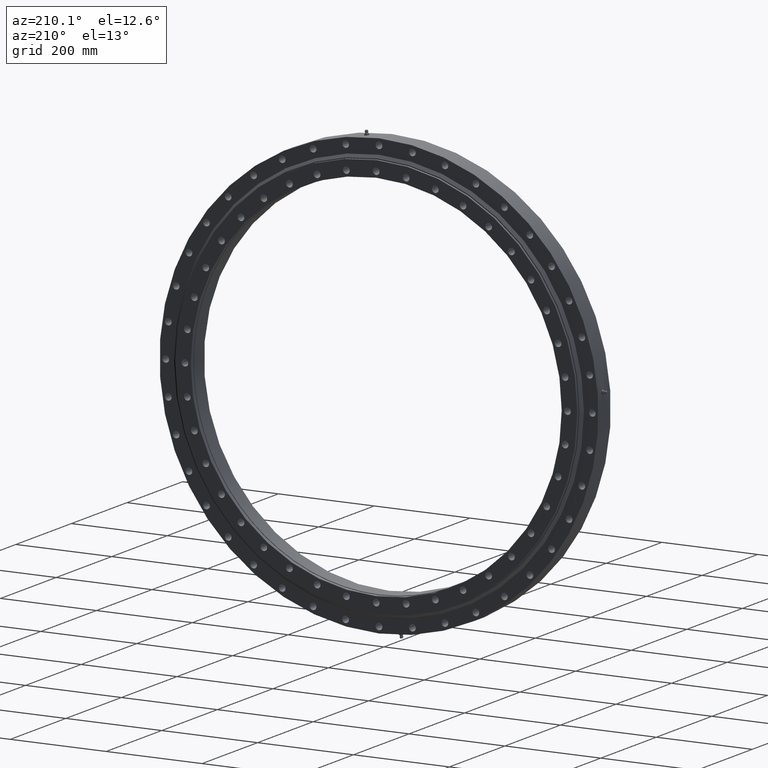
[diagram: clean part render]
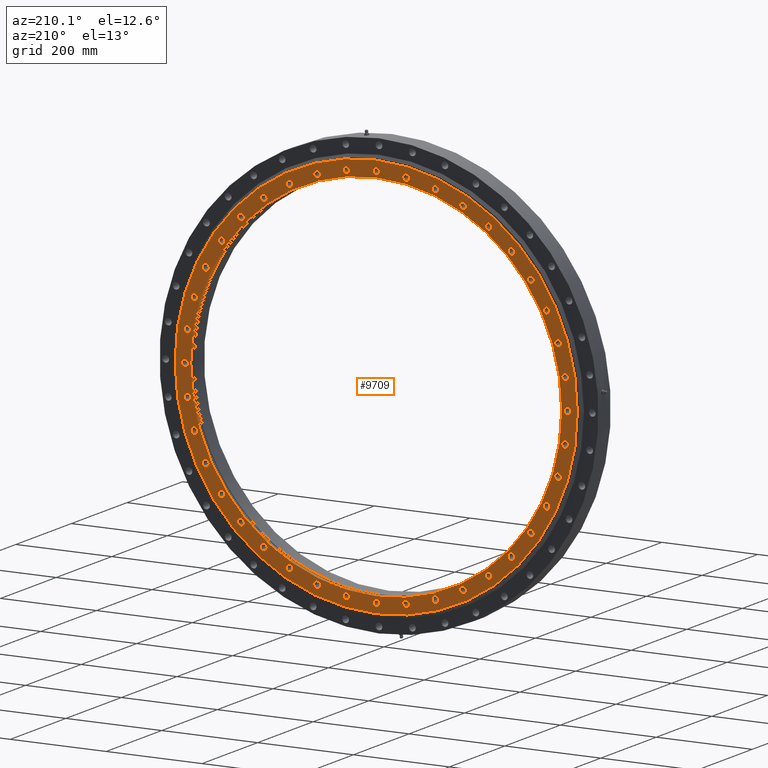
[diagram: same view with one face highlighted and labeled with its STEP entity id]
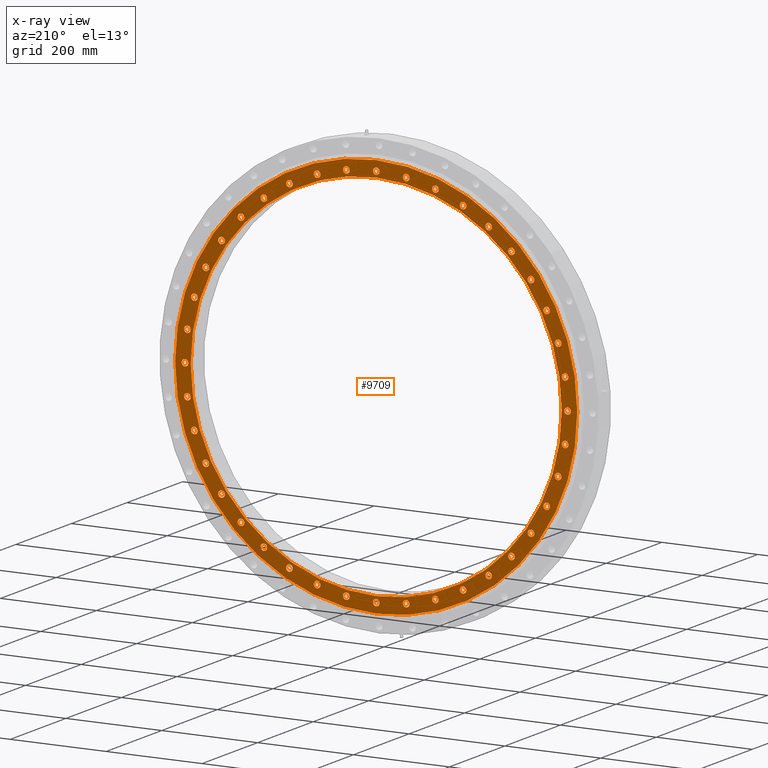
[diagram: x-ray of the same camera — body ghosted, the highlighted face saturated]
A machine part, auxiliary view. The second image highlights one B-rep face of the part: STEP entity #9709.
The next image is the same camera in x-ray: the body ghosted, the highlighted face saturated — about 0% of this face is hidden behind the body in this view.
In plain terms, the highlighted planar face has unit normal (0, -1, 0).
Its self-contained STEP definition (entity closure, byte-faithful):
#1 = CARTESIAN_POINT ( 'NONE',  ( 379.4715500017657100, 27.99999999999996100, -123.2977807556058800 ) ) ;
#14 = DIRECTION ( 'NONE',  ( 3.081487911019577400E-033, 1.000000000000000000, -2.727064569436389700E-017 ) ) ;
#15 = FACE_BOUND ( 'NONE', #3322, .T. ) ;
#18 = CIRCLE ( 'NONE', #10692, 7.000000000000025800 ) ;
#38 = CIRCLE ( 'NONE', #8065, 7.000000000000006200 ) ;
#42 = DIRECTION ( 'NONE',  ( 0.8910065241883733400, 0.0000000000000000000, -0.4539904997395359200 ) ) ;
#54 = CARTESIAN_POINT ( 'NONE',  ( 322.7977807556045500, 27.99999999999997200, 227.5263156646960300 ) ) ;
#57 = DIRECTION ( 'NONE',  ( -0.3090169943749498900, 0.0000000000000000000, 0.9510565162951527500 ) ) ;
#98 = AXIS2_PLACEMENT_3D ( 'NONE', #7058, #1273, #6235 ) ;
#102 = VERTEX_POINT ( 'NONE', #6354 ) ;
#117 = AXIS2_PLACEMENT_3D ( 'NONE', #7720, #1973, #6914 ) ;
#118 = FACE_BOUND ( 'NONE', #7595, .T. ) ;
#129 = DIRECTION ( 'NONE',  ( 0.0000000000000000000, -1.000000000000000000, 2.727064569436389700E-017 ) ) ;
#145 = VERTEX_POINT ( 'NONE', #7639 ) ;
#152 = CIRCLE ( 'NONE', #2429, 7.000000000000008000 ) ;
#154 = EDGE_LOOP ( 'NONE', ( #3365, #1659 ) ) ;
#164 = DIRECTION ( 'NONE',  ( -0.9510565162951522000, 0.0000000000000000000, -0.3090169943749516700 ) ) ;
#170 = CARTESIAN_POINT ( 'NONE',  ( 5.137699484122933200E-014, 27.99999999999995400, -419.5249999999999800 ) ) ;
#193 = CARTESIAN_POINT ( 'NONE',  ( -62.41735155105524800, 27.99999999999995400, -394.0876478974594800 ) ) ;
#237 = CIRCLE ( 'NONE', #3374, 7.000000000000015100 ) ;
#245 = CARTESIAN_POINT ( 'NONE',  ( 379.4715500017657100, 27.99999999999996100, -116.2977807556058600 ) ) ;
#253 = VERTEX_POINT ( 'NONE', #7846 ) ;
#259 = CIRCLE ( 'NONE', #2628, 7.000000000000032900 ) ;
#296 = CARTESIAN_POINT ( 'NONE',  ( -123.2977807556070400, 27.99999999999995400, -386.4715500017653700 ) ) ;
#309 = AXIS2_PLACEMENT_3D ( 'NONE', #362, #5332, #10262 ) ;
#330 = AXIS2_PLACEMENT_3D ( 'NONE', #6560, #1623, #7394 ) ;
#355 = DIRECTION ( 'NONE',  ( 1.540743955509788700E-033, 1.000000000000000000, -2.727064569436389400E-017 ) ) ;
#362 = CARTESIAN_POINT ( 'NONE',  ( 322.7977807556045500, 27.99999999999997200, 234.5263156646960600 ) ) ;
#370 = AXIS2_PLACEMENT_3D ( 'NONE', #5839, #861, #9164 ) ;
#380 = FACE_BOUND ( 'NONE', #6638, .T. ) ;
#385 = DIRECTION ( 'NONE',  ( -1.540743955509788700E-033, 1.000000000000000000, -2.727064569436389400E-017 ) ) ;
#411 = VERTEX_POINT ( 'NONE', #4309 ) ;
#419 = CARTESIAN_POINT ( 'NONE',  ( 234.5263156646949800, 27.99999999999995400, -322.7977807556053400 ) ) ;
#422 = CARTESIAN_POINT ( 'NONE',  ( -355.5116031511605600, 27.99999999999995700, -181.1422093960757400 ) ) ;
#443 = EDGE_CURVE ( 'NONE', #9356, #7899, #2097, .T. ) ;
#460 = VERTEX_POINT ( 'NONE', #5116 ) ;
#468 = CARTESIAN_POINT ( 'NONE',  ( -322.7977807556062500, 27.99999999999995700, -234.5263156646936700 ) ) ;
#497 = CIRCLE ( 'NONE', #9123, 7.000000000000014200 ) ;
#537 = ORIENTED_EDGE ( 'NONE', *, *, #2901, .F. ) ;
#541 = CARTESIAN_POINT ( 'NONE',  ( -322.7977807556062500, 27.99999999999995700, -227.5263156646936400 ) ) ;
#576 = CIRCLE ( 'NONE', #7442, 7.000000000000017800 ) ;
#579 = AXIS2_PLACEMENT_3D ( 'NONE', #3500, #10669, #769 ) ;
#613 = DIRECTION ( 'NONE',  ( 6.982962677686289600E-015, 0.0000000000000000000, -1.000000000000000000 ) ) ;
#615 = CIRCLE ( 'NONE', #4922, 7.000000000000030200 ) ;
#631 = ORIENTED_EDGE ( 'NONE', *, *, #3513, .F. ) ;
#642 = CARTESIAN_POINT ( 'NONE',  ( -394.0876478974606100, 27.99999999999996100, -62.41735155104796500 ) ) ;
#658 = FACE_BOUND ( 'NONE', #7008, .T. ) ;
#700 = VERTEX_POINT ( 'NONE', #10114 ) ;
#711 = VERTEX_POINT ( 'NONE', #170 ) ;
#716 = EDGE_LOOP ( 'NONE', ( #1943, #9853 ) ) ;
#722 = DIRECTION ( 'NONE',  ( -3.081487911019577400E-033, 1.000000000000000000, -2.727064569436389700E-017 ) ) ;
#723 = EDGE_LOOP ( 'NONE', ( #2675, #6068 ) ) ;
#741 = CIRCLE ( 'NONE', #8947, 7.000000000000032900 ) ;
#755 = VERTEX_POINT ( 'NONE', #5568 ) ;
#769 = DIRECTION ( 'NONE',  ( -0.8910065241883667900, 0.0000000000000000000, -0.4539904997395485300 ) ) ;
#773 = CARTESIAN_POINT ( 'NONE',  ( 5.774016980810217100E-012, 27.99999999999997500, 392.0000000000000000 ) ) ;
#778 = EDGE_CURVE ( 'NONE', #6519, #1368, #3287, .T. ) ;
#782 = CARTESIAN_POINT ( 'NONE',  ( 234.5263156646949800, 27.99999999999995400, -322.7977807556053400 ) ) ;
#786 = CARTESIAN_POINT ( 'NONE',  ( 181.1422093960796600, 27.99999999999997500, 355.5116031511585700 ) ) ;
#789 = FACE_BOUND ( 'NONE', #1866, .T. ) ;
#798 = CIRCLE ( 'NONE', #7352, 6.999999999999995600 ) ;
#815 = CARTESIAN_POINT ( 'NONE',  ( 181.1422093960796600, 27.99999999999997500, 355.5116031511585700 ) ) ;
#822 = AXIS2_PLACEMENT_3D ( 'NONE', #9405, #3644, #8566 ) ;
#836 = VERTEX_POINT ( 'NONE', #2449 ) ;
#851 = CARTESIAN_POINT ( 'NONE',  ( 322.7977807556029600, 27.99999999999995700, -234.5263156646983600 ) ) ;
#852 = EDGE_CURVE ( 'NONE', #6536, #711, #8675, .T. ) ;
#857 = CIRCLE ( 'NONE', #8730, 7.000000000000032900 ) ;
#861 = DIRECTION ( 'NONE',  ( 0.0000000000000000000, 1.000000000000000000, -2.727064569436389400E-017 ) ) ;
#864 = DIRECTION ( 'NONE',  ( 3.081487911019577400E-033, 1.000000000000000000, -2.727064569436390300E-017 ) ) ;
#868 = ORIENTED_EDGE ( 'NONE', *, *, #2296, .F. ) ;
#875 = CARTESIAN_POINT ( 'NONE',  ( 5.773159728050814000E-012, 27.99999999999997500, 399.0000000000000000 ) ) ;
#886 = VERTEX_POINT ( 'NONE', #9568 ) ;
#906 = VERTEX_POINT ( 'NONE', #6338 ) ;
#932 = AXIS2_PLACEMENT_3D ( 'NONE', #7552, #129, #10042 ) ;
#939 = CIRCLE ( 'NONE', #5581, 7.000000000000019500 ) ;
#951 = DIRECTION ( 'NONE',  ( 0.4539904997395517400, 0.0000000000000000000, -0.8910065241883653500 ) ) ;
#955 = DIRECTION ( 'NONE',  ( -0.9510565162951522000, 0.0000000000000000000, -0.3090169943749516700 ) ) ;
#957 = ORIENTED_EDGE ( 'NONE', *, *, #8840, .F. ) ;
#974 = CARTESIAN_POINT ( 'NONE',  ( -123.2977807556070400, 27.99999999999995400, -372.4715500017653700 ) ) ;
#982 = EDGE_CURVE ( 'NONE', #7474, #9788, #1733, .T. ) ;
#995 = CARTESIAN_POINT ( 'NONE',  ( -379.4715500017676400, 27.99999999999996100, -123.2977807556002000 ) ) ;
#1003 = DIRECTION ( 'NONE',  ( 9.244463733058732100E-033, 1.000000000000000000, -2.727064569436389700E-017 ) ) ;
#1012 = CIRCLE ( 'NONE', #6169, 7.000000000000016900 ) ;
#1039 = CARTESIAN_POINT ( 'NONE',  ( -282.1356056934288900, 27.99999999999997200, 282.1356056934361000 ) ) ;
#1042 = CARTESIAN_POINT ( 'NONE',  ( 123.2977807556015100, 27.99999999999995400, -379.4715500017671300 ) ) ;
#1043 = FACE_BOUND ( 'NONE', #8992, .T. ) ;
#1044 = VERTEX_POINT ( 'NONE', #4349 ) ;
#1052 = FACE_BOUND ( 'NONE', #7411, .T. ) ;
#1079 = DIRECTION ( 'NONE',  ( 0.0000000000000000000, 1.000000000000000000, -2.727064569436390300E-017 ) ) ;
#1107 = CARTESIAN_POINT ( 'NONE',  ( 62.41735155104934300, 27.99999999999995400, -394.0876478974603900 ) ) ;
#1119 = VERTEX_POINT ( 'NONE', #4143 ) ;
#1126 = ORIENTED_EDGE ( 'NONE', *, *, #3915, .F. ) ;
#1128 = CIRCLE ( 'NONE', #3737, 7.000000000000020400 ) ;
#1144 = DIRECTION ( 'NONE',  ( -0.5877852522924706900, 0.0000000000000000000, -0.8090169943749492300 ) ) ;
#1145 = VERTEX_POINT ( 'NONE', #6958 ) ;
#1146 = DIRECTION ( 'NONE',  ( 0.0000000000000000000, 1.000000000000000000, -2.727064569436389100E-017 ) ) ;
#1181 = DIRECTION ( 'NONE',  ( -3.081487911019577400E-033, 1.000000000000000000, -2.727064569436389700E-017 ) ) ;
#1186 = ORIENTED_EDGE ( 'NONE', *, *, #7201, .F. ) ;
#1201 = EDGE_CURVE ( 'NONE', #7392, #2352, #1709, .T. ) ;
#1204 = VERTEX_POINT ( 'NONE', #7691 ) ;
#1218 = AXIS2_PLACEMENT_3D ( 'NONE', #468, #5439, #10374 ) ;
#1228 = DIRECTION ( 'NONE',  ( 0.4539904997395517400, 0.0000000000000000000, -0.8910065241883653500 ) ) ;
#1230 = CARTESIAN_POINT ( 'NONE',  ( -322.7977807556012000, 27.99999999999997200, 227.5263156647007200 ) ) ;
#1273 = DIRECTION ( 'NONE',  ( 1.540743955509788700E-033, 1.000000000000000000, -2.727064569436389400E-017 ) ) ;
#1287 = CARTESIAN_POINT ( 'NONE',  ( 234.5263156646971900, 27.99999999999997200, 322.7977807556037500 ) ) ;
#1289 = EDGE_CURVE ( 'NONE', #836, #5554, #4702, .T. ) ;
#1311 = EDGE_CURVE ( 'NONE', #9262, #10666, #3425, .T. ) ;
#1314 = CARTESIAN_POINT ( 'NONE',  ( 123.2977807556045500, 27.99999999999997500, 372.4715500017661000 ) ) ;
#1329 = CARTESIAN_POINT ( 'NONE',  ( 123.2977807556045500, 27.99999999999997500, 386.4715500017661600 ) ) ;
#1332 = CARTESIAN_POINT ( 'NONE',  ( -379.4715500017649700, 27.99999999999996800, 123.2977807556084700 ) ) ;
#1368 = VERTEX_POINT ( 'NONE', #8722 ) ;
#1395 = ORIENTED_EDGE ( 'NONE', *, *, #9487, .F. ) ;
#1397 = DIRECTION ( 'NONE',  ( 0.9876883405951359900, 0.0000000000000000000, 0.1564344650402414700 ) ) ;
#1452 = FACE_BOUND ( 'NONE', #1481, .T. ) ;
#1463 = EDGE_CURVE ( 'NONE', #9365, #3559, #5726, .T. ) ;
#1481 = EDGE_LOOP ( 'NONE', ( #7739, #1551 ) ) ;
#1495 = CARTESIAN_POINT ( 'NONE',  ( 62.41735155105233400, 27.99999999999997500, 394.0876478974600400 ) ) ;
#1497 = ORIENTED_EDGE ( 'NONE', *, *, #2301, .F. ) ;
#1504 = VERTEX_POINT ( 'NONE', #3515 ) ;
#1515 = ORIENTED_EDGE ( 'NONE', *, *, #10095, .F. ) ;
#1533 = VERTEX_POINT ( 'NONE', #8558 ) ;
#1535 = EDGE_LOOP ( 'NONE', ( #10541, #8705 ) ) ;
#1536 = DIRECTION ( 'NONE',  ( 0.8090169943749538900, 0.0000000000000000000, -0.5877852522924642600 ) ) ;
#1551 = ORIENTED_EDGE ( 'NONE', *, *, #4804, .F. ) ;
#1554 = VERTEX_POINT ( 'NONE', #9960 ) ;
#1555 = ORIENTED_EDGE ( 'NONE', *, *, #1785, .F. ) ;
#1594 = ORIENTED_EDGE ( 'NONE', *, *, #2516, .F. ) ;
#1620 = EDGE_CURVE ( 'NONE', #6798, #102, #18, .T. ) ;
#1623 = DIRECTION ( 'NONE',  ( 0.0000000000000000000, 1.000000000000000000, -2.727064569436390000E-017 ) ) ;
#1659 = ORIENTED_EDGE ( 'NONE', *, *, #8044, .F. ) ;
#1660 = CARTESIAN_POINT ( 'NONE',  ( -62.41735155104657200, 27.99999999999997500, 394.0876478974609000 ) ) ;
#1669 = EDGE_CURVE ( 'NONE', #8455, #4026, #4453, .T. ) ;
#1671 = CARTESIAN_POINT ( 'NONE',  ( -123.2977807555988400, 27.99999999999997500, 372.4715500017680900 ) ) ;
#1682 = ORIENTED_EDGE ( 'NONE', *, *, #9389, .F. ) ;
#1684 = DIRECTION ( 'NONE',  ( 0.9510565162951569700, 0.0000000000000000000, -0.3090169943749368500 ) ) ;
#1695 = CIRCLE ( 'NONE', #2289, 7.000000000000030200 ) ;
#1703 = CARTESIAN_POINT ( 'NONE',  ( 355.5116031511579400, 27.99999999999995700, -181.1422093960809100 ) ) ;
#1709 = CIRCLE ( 'NONE', #2004, 7.000000000000016900 ) ;
#1719 = VERTEX_POINT ( 'NONE', #6087 ) ;
#1729 = CIRCLE ( 'NONE', #2914, 7.000000000000053300 ) ;
#1733 = CIRCLE ( 'NONE', #9738, 7.000000000000043500 ) ;
#1736 = DIRECTION ( 'NONE',  ( 0.0000000000000000000, 0.0000000000000000000, 1.000000000000000000 ) ) ;
#1745 = EDGE_LOOP ( 'NONE', ( #1998, #8003 ) ) ;
#1748 = DIRECTION ( 'NONE',  ( -0.5877852522924732500, 0.0000000000000000000, 0.8090169943749473400 ) ) ;
#1752 = DIRECTION ( 'NONE',  ( -3.081487911019577400E-033, 1.000000000000000000, -2.727064569436389100E-017 ) ) ;
#1762 = ORIENTED_EDGE ( 'NONE', *, *, #2959, .F. ) ;
#1785 = EDGE_CURVE ( 'NONE', #9895, #5164, #9598, .T. ) ;
#1794 = ORIENTED_EDGE ( 'NONE', *, *, #8906, .F. ) ;
#1795 = DIRECTION ( 'NONE',  ( 0.0000000000000000000, 1.000000000000000000, -2.727064569436389700E-017 ) ) ;
#1846 = DIRECTION ( 'NONE',  ( 0.3090169943749553300, 0.0000000000000000000, -0.9510565162951510900 ) ) ;
#1850 = EDGE_CURVE ( 'NONE', #9864, #3112, #3661, .T. ) ;
#1859 = EDGE_LOOP ( 'NONE', ( #2350, #3512 ) ) ;
#1866 = EDGE_LOOP ( 'NONE', ( #1395, #4225 ) ) ;
#1873 = VERTEX_POINT ( 'NONE', #3598 ) ;
#1935 = DIRECTION ( 'NONE',  ( 3.081487911019577400E-033, 1.000000000000000000, -2.727064569436390300E-017 ) ) ;
#1942 = DIRECTION ( 'NONE',  ( -3.081487911019577400E-033, 1.000000000000000000, -2.727064569436390000E-017 ) ) ;
#1943 = ORIENTED_EDGE ( 'NONE', *, *, #9446, .F. ) ;
#1945 = CIRCLE ( 'NONE', #3048, 7.000000000000028400 ) ;
#1949 = ORIENTED_EDGE ( 'NONE', *, *, #1311, .F. ) ;
#1973 = DIRECTION ( 'NONE',  ( -0.0000000000000000000, 1.000000000000000000, -2.727064569436389700E-017 ) ) ;
#1990 = CIRCLE ( 'NONE', #7921, 7.000000000000030200 ) ;
#1998 = ORIENTED_EDGE ( 'NONE', *, *, #1620, .F. ) ;
#2000 = CIRCLE ( 'NONE', #9165, 7.000000000000008000 ) ;
#2001 = CARTESIAN_POINT ( 'NONE',  ( -234.5263156646996400, 27.99999999999995400, -322.7977807556019900 ) ) ;
#2004 = AXIS2_PLACEMENT_3D ( 'NONE', #3239, #4078, #3175 ) ;
#2026 = DIRECTION ( 'NONE',  ( 0.0000000000000000000, 1.000000000000000000, -2.727064569436389400E-017 ) ) ;
#2039 = CARTESIAN_POINT ( 'NONE',  ( 234.5263156646949800, 27.99999999999995400, -315.7977807556053400 ) ) ;
#2041 = EDGE_CURVE ( 'NONE', #3112, #9864, #8822, .T. ) ;
#2054 = DIRECTION ( 'NONE',  ( 3.081487911019577400E-033, 1.000000000000000000, -2.727064569436389100E-017 ) ) ;
#2086 = CIRCLE ( 'NONE', #5589, 7.000000000000043500 ) ;
#2092 = FACE_BOUND ( 'NONE', #9752, .T. ) ;
#2097 = CIRCLE ( 'NONE', #6045, 7.000000000000044400 ) ;
#2100 = AXIS2_PLACEMENT_3D ( 'NONE', #8925, #7355, #2440 ) ;
#2101 = FACE_BOUND ( 'NONE', #7532, .T. ) ;
#2112 = DIRECTION ( 'NONE',  ( 9.244463733058732100E-033, 1.000000000000000000, -2.727064569436389700E-017 ) ) ;
#2163 = AXIS2_PLACEMENT_3D ( 'NONE', #8171, #8057, #7348 ) ;
#2165 = CARTESIAN_POINT ( 'NONE',  ( -394.0876478974606100, 27.99999999999996100, -55.41735155104795000 ) ) ;
#2178 = DIRECTION ( 'NONE',  ( 0.1564344650402385600, 0.0000000000000000000, -0.9876883405951365500 ) ) ;
#2245 = CARTESIAN_POINT ( 'NONE',  ( -322.7977807556012000, 27.99999999999997200, 241.5263156647007700 ) ) ;
#2264 = CARTESIAN_POINT ( 'NONE',  ( 394.0876478974601600, 27.99999999999996400, 62.41735155105088500 ) ) ;
#2265 = FACE_BOUND ( 'NONE', #1745, .T. ) ;
#2266 = EDGE_CURVE ( 'NONE', #7414, #10080, #9000, .T. ) ;
#2287 = DIRECTION ( 'NONE',  ( 9.244463733058732100E-033, 1.000000000000000000, -2.727064569436389700E-017 ) ) ;
#2289 = AXIS2_PLACEMENT_3D ( 'NONE', #786, #7374, #3344 ) ;
#2295 = ORIENTED_EDGE ( 'NONE', *, *, #3931, .F. ) ;
#2296 = EDGE_CURVE ( 'NONE', #1119, #10180, #9145, .T. ) ;
#2301 = EDGE_CURVE ( 'NONE', #1145, #1504, #1012, .T. ) ;
#2329 = DIRECTION ( 'NONE',  ( 0.7071067811865395800, 0.0000000000000000000, 0.7071067811865554600 ) ) ;
#2350 = ORIENTED_EDGE ( 'NONE', *, *, #5318, .F. ) ;
#2352 = VERTEX_POINT ( 'NONE', #6062 ) ;
#2370 = FACE_BOUND ( 'NONE', #5138, .T. ) ;
#2391 = EDGE_CURVE ( 'NONE', #886, #1204, #7086, .T. ) ;
#2399 = DIRECTION ( 'NONE',  ( 6.162975822039154700E-033, 1.000000000000000000, -2.727064569436390300E-017 ) ) ;
#2416 = DIRECTION ( 'NONE',  ( 0.0000000000000000000, 2.480982267054607700E-017, 1.000000000000000000 ) ) ;
#2429 = AXIS2_PLACEMENT_3D ( 'NONE', #3164, #3134, #4742 ) ;
#2430 = DIRECTION ( 'NONE',  ( -3.081487911019577400E-033, 1.000000000000000000, -2.727064569436389100E-017 ) ) ;
#2440 = DIRECTION ( 'NONE',  ( -0.5877852522924706900, 0.0000000000000000000, -0.8090169943749492300 ) ) ;
#2442 = CIRCLE ( 'NONE', #6409, 7.000000000000013300 ) ;
#2449 = CARTESIAN_POINT ( 'NONE',  ( -62.41735155105524800, 27.99999999999995400, -387.0876478974594800 ) ) ;
#2451 = EDGE_CURVE ( 'NONE', #2578, #9586, #8247, .T. ) ;
#2471 = ORIENTED_EDGE ( 'NONE', *, *, #10256, .F. ) ;
#2483 = ORIENTED_EDGE ( 'NONE', *, *, #4286, .F. ) ;
#2516 = EDGE_CURVE ( 'NONE', #1533, #5756, #615, .T. ) ;
#2519 = DIRECTION ( 'NONE',  ( -0.9510565162951545300, 0.0000000000000000000, 0.3090169943749445100 ) ) ;
#2534 = AXIS2_PLACEMENT_3D ( 'NONE', #995, #5972, #164 ) ;
#2554 = DIRECTION ( 'NONE',  ( -1.000000000000000000, 0.0000000000000000000, -3.491481338843116800E-015 ) ) ;
#2572 = AXIS2_PLACEMENT_3D ( 'NONE', #5654, #10578, #8125 ) ;
#2578 = VERTEX_POINT ( 'NONE', #6019 ) ;
#2579 = VERTEX_POINT ( 'NONE', #6090 ) ;
#2586 = EDGE_CURVE ( 'NONE', #7800, #4205, #8487, .T. ) ;
#2620 = VERTEX_POINT ( 'NONE', #5219 ) ;
#2628 = AXIS2_PLACEMENT_3D ( 'NONE', #6732, #10689, #5791 ) ;
#2634 = VERTEX_POINT ( 'NONE', #9390 ) ;
#2666 = EDGE_CURVE ( 'NONE', #2579, #9411, #5941, .T. ) ;
#2675 = ORIENTED_EDGE ( 'NONE', *, *, #2391, .F. ) ;
#2691 = CARTESIAN_POINT ( 'NONE',  ( 379.4715500017666700, 27.99999999999996800, 123.2977807556028400 ) ) ;
#2712 = ORIENTED_EDGE ( 'NONE', *, *, #2586, .F. ) ;
#2713 = DIRECTION ( 'NONE',  ( -0.1564344650402317600, 0.0000000000000000000, 0.9876883405951375500 ) ) ;
#2741 = EDGE_LOOP ( 'NONE', ( #2295, #5051 ) ) ;
#2786 = EDGE_CURVE ( 'NONE', #10180, #1119, #2837, .T. ) ;
#2815 = DIRECTION ( 'NONE',  ( -0.8910065241883667900, 0.0000000000000000000, -0.4539904997395485300 ) ) ;
#2822 = EDGE_CURVE ( 'NONE', #5164, #9895, #9393, .T. ) ;
#2824 = CIRCLE ( 'NONE', #330, 7.000000000000021300 ) ;
#2826 = VERTEX_POINT ( 'NONE', #9650 ) ;
#2837 = CIRCLE ( 'NONE', #5329, 7.000000000000006200 ) ;
#2884 = FACE_BOUND ( 'NONE', #3594, .T. ) ;
#2901 = EDGE_CURVE ( 'NONE', #5694, #411, #5014, .T. ) ;
#2911 = AXIS2_PLACEMENT_3D ( 'NONE', #10403, #3037, #2416 ) ;
#2912 = DIRECTION ( 'NONE',  ( 3.081487911019577400E-033, 1.000000000000000000, -2.727064569436389700E-017 ) ) ;
#2914 = AXIS2_PLACEMENT_3D ( 'NONE', #3803, #4551, #5389 ) ;
#2949 = CIRCLE ( 'NONE', #4255, 7.000000000000014200 ) ;
#2950 = DIRECTION ( 'NONE',  ( 0.0000000000000000000, 1.000000000000000000, -2.727064569436390300E-017 ) ) ;
#2959 = EDGE_CURVE ( 'NONE', #10643, #2620, #1128, .T. ) ;
#3018 = DIRECTION ( 'NONE',  ( 0.1564344650402385600, 0.0000000000000000000, -0.9876883405951365500 ) ) ;
#3037 = DIRECTION ( 'NONE',  ( -0.0000000000000000000, 1.000000000000000000, -2.727064569436389700E-017 ) ) ;
#3041 = AXIS2_PLACEMENT_3D ( 'NONE', #9076, #10672, #2554 ) ;
#3048 = AXIS2_PLACEMENT_3D ( 'NONE', #1287, #7371, #4570 ) ;
#3071 = DIRECTION ( 'NONE',  ( 0.0000000000000000000, -1.000000000000000000, 2.727064569436389700E-017 ) ) ;
#3093 = CARTESIAN_POINT ( 'NONE',  ( -399.0000000000000000, 27.99999999999996400, -6.999999999995643500 ) ) ;
#3112 = VERTEX_POINT ( 'NONE', #3450 ) ;
#3134 = DIRECTION ( 'NONE',  ( 0.0000000000000000000, 1.000000000000000000, -2.727064569436389400E-017 ) ) ;
#3151 = ORIENTED_EDGE ( 'NONE', *, *, #1201, .F. ) ;
#3164 = CARTESIAN_POINT ( 'NONE',  ( 355.5116031511593100, 27.99999999999996800, 181.1422093960780700 ) ) ;
#3175 = DIRECTION ( 'NONE',  ( 0.9876883405951394400, 0.0000000000000000000, -0.1564344650402201800 ) ) ;
#3176 = AXIS2_PLACEMENT_3D ( 'NONE', #8962, #6213, #7192 ) ;
#3197 = EDGE_CURVE ( 'NONE', #1873, #8905, #8362, .T. ) ;
#3216 = VERTEX_POINT ( 'NONE', #245 ) ;
#3231 = AXIS2_PLACEMENT_3D ( 'NONE', #10203, #9047, #9781 ) ;
#3239 = CARTESIAN_POINT ( 'NONE',  ( 394.0876478974598200, 27.99999999999996100, -62.41735155105370600 ) ) ;
#3248 = EDGE_LOOP ( 'NONE', ( #3830, #7701 ) ) ;
#3249 = VERTEX_POINT ( 'NONE', #2039 ) ;
#3257 = ORIENTED_EDGE ( 'NONE', *, *, #7998, .F. ) ;
#3273 = CIRCLE ( 'NONE', #2572, 7.000000000000006200 ) ;
#3274 = ORIENTED_EDGE ( 'NONE', *, *, #3557, .F. ) ;
#3287 = CIRCLE ( 'NONE', #4213, 7.000000000000040900 ) ;
#3292 = EDGE_CURVE ( 'NONE', #711, #6536, #9807, .T. ) ;
#3298 = ORIENTED_EDGE ( 'NONE', *, *, #3292, .T. ) ;
#3309 = DIRECTION ( 'NONE',  ( -7.703719777548943400E-034, 1.000000000000000000, -2.727064569436390300E-017 ) ) ;
#3311 = DIRECTION ( 'NONE',  ( 0.3090169943749332400, 0.0000000000000000000, 0.9510565162951581900 ) ) ;
#3313 = CARTESIAN_POINT ( 'NONE',  ( -282.1356056934288900, 27.99999999999997200, 289.1356056934361000 ) ) ;
#3322 = EDGE_LOOP ( 'NONE', ( #5924, #1682 ) ) ;
#3340 = CIRCLE ( 'NONE', #4682, 7.000000000000025800 ) ;
#3344 = DIRECTION ( 'NONE',  ( 0.4539904997395328700, 0.0000000000000000000, 0.8910065241883750000 ) ) ;
#3365 = ORIENTED_EDGE ( 'NONE', *, *, #8158, .F. ) ;
#3368 = EDGE_LOOP ( 'NONE', ( #3692, #7683 ) ) ;
#3374 = AXIS2_PLACEMENT_3D ( 'NONE', #6694, #3309, #3376 ) ;
#3376 = DIRECTION ( 'NONE',  ( 0.1564344650402182400, 0.0000000000000000000, 0.9876883405951396600 ) ) ;
#3382 = AXIS2_PLACEMENT_3D ( 'NONE', #7346, #2430, #8170 ) ;
#3392 = DIRECTION ( 'NONE',  ( -0.3090169943749498900, 0.0000000000000000000, 0.9510565162951527500 ) ) ;
#3400 = EDGE_CURVE ( 'NONE', #5756, #1533, #9134, .T. ) ;
#3425 = CIRCLE ( 'NONE', #6691, 7.000000000000037300 ) ;
#3427 = DIRECTION ( 'NONE',  ( -7.703719777548943400E-034, 1.000000000000000000, -2.727064569436390300E-017 ) ) ;
#3430 = ORIENTED_EDGE ( 'NONE', *, *, #8792, .F. ) ;
#3450 = CARTESIAN_POINT ( 'NONE',  ( 123.2977807556015100, 27.99999999999995400, -372.4715500017671300 ) ) ;
#3464 = DIRECTION ( 'NONE',  ( 0.7071067811865554600, 0.0000000000000000000, -0.7071067811865395800 ) ) ;
#3471 = AXIS2_PLACEMENT_3D ( 'NONE', #9884, #5921, #955 ) ;
#3477 = ORIENTED_EDGE ( 'NONE', *, *, #3579, .F. ) ;
#3480 = VERTEX_POINT ( 'NONE', #7926 ) ;
#3483 = DIRECTION ( 'NONE',  ( -3.081487911019577400E-033, 1.000000000000000000, -2.727064569436389700E-017 ) ) ;
#3498 = CIRCLE ( 'NONE', #5224, 7.000000000000035500 ) ;
#3500 = CARTESIAN_POINT ( 'NONE',  ( -355.5116031511605600, 27.99999999999995700, -181.1422093960757400 ) ) ;
#3512 = ORIENTED_EDGE ( 'NONE', *, *, #7305, .F. ) ;
#3513 = EDGE_CURVE ( 'NONE', #1504, #1145, #5774, .T. ) ;
#3515 = CARTESIAN_POINT ( 'NONE',  ( -234.5263156646996400, 27.99999999999995400, -329.7977807556019900 ) ) ;
#3516 = FACE_BOUND ( 'NONE', #8841, .T. ) ;
#3526 = FACE_BOUND ( 'NONE', #6521, .T. ) ;
#3535 = AXIS2_PLACEMENT_3D ( 'NONE', #1660, #10712, #5772 ) ;
#3557 = EDGE_CURVE ( 'NONE', #5639, #8418, #5273, .T. ) ;
#3559 = VERTEX_POINT ( 'NONE', #9022 ) ;
#3579 = EDGE_CURVE ( 'NONE', #10378, #755, #8248, .T. ) ;
#3594 = EDGE_LOOP ( 'NONE', ( #1497, #631 ) ) ;
#3598 = CARTESIAN_POINT ( 'NONE',  ( -282.1356056934288900, 27.99999999999997200, 275.1356056934361000 ) ) ;
#3616 = ORIENTED_EDGE ( 'NONE', *, *, #9597, .F. ) ;
#3620 = DIRECTION ( 'NONE',  ( -0.9876883405951381000, 0.0000000000000000000, 0.1564344650402279000 ) ) ;
#3626 = ORIENTED_EDGE ( 'NONE', *, *, #10730, .T. ) ;
#3632 = FACE_BOUND ( 'NONE', #1859, .T. ) ;
#3644 = DIRECTION ( 'NONE',  ( -2.189528850507526700E-047, 1.000000000000000000, -2.727064569436389100E-017 ) ) ;
#3661 = CIRCLE ( 'NONE', #3176, 7.000000000000030200 ) ;
#3666 = CIRCLE ( 'NONE', #1218, 7.000000000000048800 ) ;
#3684 = CIRCLE ( 'NONE', #6264, 7.000000000000032900 ) ;
#3692 = ORIENTED_EDGE ( 'NONE', *, *, #10224, .F. ) ;
#3705 = AXIS2_PLACEMENT_3D ( 'NONE', #9158, #10651, #3311 ) ;
#3710 = EDGE_CURVE ( 'NONE', #7831, #6992, #497, .T. ) ;
#3717 = CIRCLE ( 'NONE', #4401, 7.000000000000020400 ) ;
#3722 = EDGE_CURVE ( 'NONE', #1204, #886, #8236, .T. ) ;
#3737 = AXIS2_PLACEMENT_3D ( 'NONE', #9873, #6544, #4116 ) ;
#3738 = CIRCLE ( 'NONE', #3041, 7.000000000000006200 ) ;
#3750 = FACE_BOUND ( 'NONE', #3248, .T. ) ;
#3758 = CARTESIAN_POINT ( 'NONE',  ( 234.5263156646971900, 27.99999999999997200, 329.7977807556037500 ) ) ;
#3761 = FACE_BOUND ( 'NONE', #716, .T. ) ;
#3800 = CARTESIAN_POINT ( 'NONE',  ( 5.773159728050814000E-012, 27.99999999999997500, 399.0000000000000000 ) ) ;
#3803 = CARTESIAN_POINT ( 'NONE',  ( -282.1356056934350800, 27.99999999999995700, -282.1356056934298500 ) ) ;
#3815 = CARTESIAN_POINT ( 'NONE',  ( -399.0000000000000000, 27.99999999999996400, 7.000000000004401800 ) ) ;
#3817 = DIRECTION ( 'NONE',  ( 0.0000000000000000000, -2.689493761204351900E-017, -1.000000000000000000 ) ) ;
#3828 = CARTESIAN_POINT ( 'NONE',  ( 62.41735155104934300, 27.99999999999995400, -394.0876478974603900 ) ) ;
#3830 = ORIENTED_EDGE ( 'NONE', *, *, #2041, .F. ) ;
#3841 = AXIS2_PLACEMENT_3D ( 'NONE', #5810, #14, #6641 ) ;
#3856 = EDGE_LOOP ( 'NONE', ( #10226, #1762 ) ) ;
#3868 = CARTESIAN_POINT ( 'NONE',  ( 355.5116031511593100, 27.99999999999996800, 174.1422093960780400 ) ) ;
#3882 = CARTESIAN_POINT ( 'NONE',  ( -234.5263156646926200, 27.99999999999997200, 322.7977807556071600 ) ) ;
#3896 = CARTESIAN_POINT ( 'NONE',  ( -2.986957619653993400E-012, 27.99999999999995400, -399.0000000000000000 ) ) ;
#3915 = EDGE_CURVE ( 'NONE', #5554, #836, #2824, .T. ) ;
#3931 = EDGE_CURVE ( 'NONE', #9586, #2578, #4889, .T. ) ;
#3949 = CIRCLE ( 'NONE', #98, 7.000000000000007100 ) ;
#3955 = DIRECTION ( 'NONE',  ( 0.0000000000000000000, -2.689493761204351900E-017, -1.000000000000000000 ) ) ;
#3974 = CARTESIAN_POINT ( 'NONE',  ( 355.5116031511579400, 27.99999999999995700, -188.1422093960809400 ) ) ;
#3987 = DIRECTION ( 'NONE',  ( -1.540743955509788700E-033, 1.000000000000000000, -2.727064569436389700E-017 ) ) ;
#4001 = VERTEX_POINT ( 'NONE', #5744 ) ;
#4003 = VERTEX_POINT ( 'NONE', #773 ) ;
#4008 = AXIS2_PLACEMENT_3D ( 'NONE', #1042, #6005, #1846 ) ;
#4026 = VERTEX_POINT ( 'NONE', #4169 ) ;
#4034 = AXIS2_PLACEMENT_3D ( 'NONE', #10586, #864, #3392 ) ;
#4036 = FACE_BOUND ( 'NONE', #154, .T. ) ;
#4038 = VERTEX_POINT ( 'NONE', #296 ) ;
#4052 = DIRECTION ( 'NONE',  ( -0.8910065241883685600, 0.0000000000000000000, 0.4539904997395454700 ) ) ;
#4054 = EDGE_CURVE ( 'NONE', #9788, #7474, #2086, .T. ) ;
#4073 = ORIENTED_EDGE ( 'NONE', *, *, #6093, .F. ) ;
#4078 = DIRECTION ( 'NONE',  ( -9.244463733058732100E-033, 1.000000000000000000, -2.727064569436389100E-017 ) ) ;
#4105 = ORIENTED_EDGE ( 'NONE', *, *, #5054, .F. ) ;
#4116 = DIRECTION ( 'NONE',  ( 0.8090169943749409000, 0.0000000000000000000, 0.5877852522924821300 ) ) ;
#4124 = EDGE_LOOP ( 'NONE', ( #8090, #5350 ) ) ;
#4133 = DIRECTION ( 'NONE',  ( 0.9876883405951359900, 0.0000000000000000000, 0.1564344650402414700 ) ) ;
#4143 = CARTESIAN_POINT ( 'NONE',  ( -2.986957619653993400E-012, 27.99999999999995400, -392.0000000000000000 ) ) ;
#4169 = CARTESIAN_POINT ( 'NONE',  ( -355.5116031511605600, 27.99999999999995700, -188.1422093960758000 ) ) ;
#4178 = AXIS2_PLACEMENT_3D ( 'NONE', #4296, #9213, #3464 ) ;
#4180 = VERTEX_POINT ( 'NONE', #974 ) ;
#4183 = AXIS2_PLACEMENT_3D ( 'NONE', #3828, #8741, #3018 ) ;
#4205 = VERTEX_POINT ( 'NONE', #9312 ) ;
#4213 = AXIS2_PLACEMENT_3D ( 'NONE', #4949, #9888, #4133 ) ;
#4225 = ORIENTED_EDGE ( 'NONE', *, *, #6153, .F. ) ;
#4255 = AXIS2_PLACEMENT_3D ( 'NONE', #8287, #5293, #10238 ) ;
#4272 = DIRECTION ( 'NONE',  ( 3.081487911019577400E-033, 1.000000000000000000, -2.727064569436389700E-017 ) ) ;
#4286 = EDGE_CURVE ( 'NONE', #755, #10378, #576, .T. ) ;
#4289 = FACE_BOUND ( 'NONE', #4975, .T. ) ;
#4292 = CIRCLE ( 'NONE', #6196, 7.000000000000016900 ) ;
#4293 = EDGE_LOOP ( 'NONE', ( #6013, #8662 ) ) ;
#4296 = CARTESIAN_POINT ( 'NONE',  ( 282.1356056934308200, 27.99999999999995700, -282.1356056934341200 ) ) ;
#4297 = CARTESIAN_POINT ( 'NONE',  ( -355.5116031511565800, 27.99999999999996800, 181.1422093960834400 ) ) ;
#4298 = FACE_BOUND ( 'NONE', #4390, .T. ) ;
#4309 = CARTESIAN_POINT ( 'NONE',  ( 234.5263156646971900, 27.99999999999997200, 315.7977807556037000 ) ) ;
#4349 = CARTESIAN_POINT ( 'NONE',  ( 181.1422093960796600, 27.99999999999997500, 362.5116031511585700 ) ) ;
#4378 = VERTEX_POINT ( 'NONE', #2245 ) ;
#4381 = DIRECTION ( 'NONE',  ( 3.081487911019577400E-033, 1.000000000000000000, -2.727064569436389700E-017 ) ) ;
#4387 = CARTESIAN_POINT ( 'NONE',  ( -123.2977807555988400, 27.99999999999997500, 379.4715500017680900 ) ) ;
#4390 = EDGE_LOOP ( 'NONE', ( #2471, #1186 ) ) ;
#4401 = AXIS2_PLACEMENT_3D ( 'NONE', #419, #2950, #9896 ) ;
#4409 = VERTEX_POINT ( 'NONE', #1230 ) ;
#4413 = AXIS2_PLACEMENT_3D ( 'NONE', #4754, #9688, #7241 ) ;
#4453 = CIRCLE ( 'NONE', #6417, 7.000000000000032900 ) ;
#4494 = EDGE_LOOP ( 'NONE', ( #3616, #3274 ) ) ;
#4504 = DIRECTION ( 'NONE',  ( 3.081487911019577400E-033, 1.000000000000000000, -2.727064569436389400E-017 ) ) ;
#4512 = CARTESIAN_POINT ( 'NONE',  ( -62.41735155104657200, 27.99999999999997500, 387.0876478974609000 ) ) ;
#4551 = DIRECTION ( 'NONE',  ( 0.0000000000000000000, 1.000000000000000000, -2.727064569436389400E-017 ) ) ;
#4570 = DIRECTION ( 'NONE',  ( 0.5877852522924617000, 0.0000000000000000000, 0.8090169943749556700 ) ) ;
#4607 = DIRECTION ( 'NONE',  ( 3.081487911019577400E-033, 1.000000000000000000, -2.727064569436389100E-017 ) ) ;
#4626 = EDGE_LOOP ( 'NONE', ( #10449, #3298 ) ) ;
#4646 = CARTESIAN_POINT ( 'NONE',  ( 0.0000000000000000000, 27.99999999999996100, 0.0000000000000000000 ) ) ;
#4682 = AXIS2_PLACEMENT_3D ( 'NONE', #5269, #2112, #3620 ) ;
#4698 = ORIENTED_EDGE ( 'NONE', *, *, #8345, .F. ) ;
#4702 = CIRCLE ( 'NONE', #5787, 7.000000000000021300 ) ;
#4719 = DIRECTION ( 'NONE',  ( 0.8910065241883733400, 0.0000000000000000000, -0.4539904997395359200 ) ) ;
#4742 = DIRECTION ( 'NONE',  ( 0.8910065241883621300, 0.0000000000000000000, 0.4539904997395580700 ) ) ;
#4754 = CARTESIAN_POINT ( 'NONE',  ( 399.0000000000000000, 27.99999999999996400, -1.594620143535025100E-012 ) ) ;
#4759 = CARTESIAN_POINT ( 'NONE',  ( 282.1356056934331500, 27.99999999999997200, 282.1356056934318400 ) ) ;
#4798 = FACE_BOUND ( 'NONE', #10151, .T. ) ;
#4799 = DIRECTION ( 'NONE',  ( -9.244463733058732100E-033, 1.000000000000000000, -2.727064569436389100E-017 ) ) ;
#4804 = EDGE_CURVE ( 'NONE', #5122, #3249, #3717, .T. ) ;
#4809 = FACE_BOUND ( 'NONE', #9778, .T. ) ;
#4832 = CARTESIAN_POINT ( 'NONE',  ( 181.1422093960769900, 27.99999999999995400, -348.5116031511599300 ) ) ;
#4865 = ORIENTED_EDGE ( 'NONE', *, *, #1669, .F. ) ;
#4889 = CIRCLE ( 'NONE', #2163, 7.000000000000014200 ) ;
#4922 = AXIS2_PLACEMENT_3D ( 'NONE', #9279, #8447, #2713 ) ;
#4925 = VERTEX_POINT ( 'NONE', #7549 ) ;
#4949 = CARTESIAN_POINT ( 'NONE',  ( 394.0876478974601600, 27.99999999999996400, 62.41735155105088500 ) ) ;
#4975 = EDGE_LOOP ( 'NONE', ( #9306, #9316 ) ) ;
#5003 = DIRECTION ( 'NONE',  ( -3.081487911019577400E-033, 1.000000000000000000, -2.727064569436389100E-017 ) ) ;
#5006 = EDGE_CURVE ( 'NONE', #8905, #1873, #2442, .T. ) ;
#5014 = CIRCLE ( 'NONE', #10105, 7.000000000000028400 ) ;
#5015 = CARTESIAN_POINT ( 'NONE',  ( 62.41735155104934300, 27.99999999999995400, -387.0876478974603900 ) ) ;
#5035 = EDGE_LOOP ( 'NONE', ( #957, #3430 ) ) ;
#5041 = ORIENTED_EDGE ( 'NONE', *, *, #8923, .F. ) ;
#5051 = ORIENTED_EDGE ( 'NONE', *, *, #2451, .F. ) ;
#5054 = EDGE_CURVE ( 'NONE', #1368, #6519, #9379, .T. ) ;
#5056 = DIRECTION ( 'NONE',  ( 1.540743955509788700E-033, 1.000000000000000000, -2.727064569436389700E-017 ) ) ;
#5060 = FACE_BOUND ( 'NONE', #4494, .T. ) ;
#5068 = FACE_BOUND ( 'NONE', #6854, .T. ) ;
#5078 = CIRCLE ( 'NONE', #8205, 7.000000000000019500 ) ;
#5110 = AXIS2_PLACEMENT_3D ( 'NONE', #2691, #1181, #9269 ) ;
#5116 = CARTESIAN_POINT ( 'NONE',  ( 0.0000000000000000000, 27.99999999999997200, 387.0000000000000000 ) ) ;
#5122 = VERTEX_POINT ( 'NONE', #9442 ) ;
#5137 = CIRCLE ( 'NONE', #5438, 7.000000000000044400 ) ;
#5138 = EDGE_LOOP ( 'NONE', ( #10653, #3151 ) ) ;
#5152 = CARTESIAN_POINT ( 'NONE',  ( -123.2977807556070400, 27.99999999999995400, -379.4715500017653700 ) ) ;
#5164 = VERTEX_POINT ( 'NONE', #8837 ) ;
#5208 = EDGE_CURVE ( 'NONE', #2352, #7392, #4292, .T. ) ;
#5219 = CARTESIAN_POINT ( 'NONE',  ( 322.7977807556045500, 27.99999999999997200, 241.5263156646960900 ) ) ;
#5224 = AXIS2_PLACEMENT_3D ( 'NONE', #6154, #7833, #7510 ) ;
#5228 = EDGE_CURVE ( 'NONE', #3480, #460, #9488, .T. ) ;
#5269 = CARTESIAN_POINT ( 'NONE',  ( -394.0876478974593600, 27.99999999999996400, 62.41735155105653400 ) ) ;
#5273 = CIRCLE ( 'NONE', #8168, 7.000000000000015100 ) ;
#5290 = DIRECTION ( 'NONE',  ( 0.8910065241883621300, 0.0000000000000000000, 0.4539904997395580700 ) ) ;
#5293 = DIRECTION ( 'NONE',  ( -3.081487911019577400E-033, 1.000000000000000000, -2.727064569436389400E-017 ) ) ;
#5318 = EDGE_CURVE ( 'NONE', #9913, #906, #741, .T. ) ;
#5328 = DIRECTION ( 'NONE',  ( -0.4539904997395423100, 0.0000000000000000000, -0.8910065241883701200 ) ) ;
#5329 = AXIS2_PLACEMENT_3D ( 'NONE', #3896, #8809, #613 ) ;
#5332 = DIRECTION ( 'NONE',  ( -3.081487911019577400E-033, 1.000000000000000000, -2.727064569436389700E-017 ) ) ;
#5350 = ORIENTED_EDGE ( 'NONE', *, *, #8567, .F. ) ;
#5389 = DIRECTION ( 'NONE',  ( -0.7071067811865435800, 0.0000000000000000000, -0.7071067811865515700 ) ) ;
#5438 = AXIS2_PLACEMENT_3D ( 'NONE', #6179, #385, #1228 ) ;
#5439 = DIRECTION ( 'NONE',  ( -3.081487911019577400E-033, 1.000000000000000000, -2.727064569436390000E-017 ) ) ;
#5457 = AXIS2_PLACEMENT_3D ( 'NONE', #3800, #1795, #7555 ) ;
#5461 = CIRCLE ( 'NONE', #5457, 7.000000000000006200 ) ;
#5498 = CARTESIAN_POINT ( 'NONE',  ( 62.41735155105233400, 27.99999999999997500, 401.0876478974600400 ) ) ;
#5499 = EDGE_CURVE ( 'NONE', #7899, #9356, #5137, .T. ) ;
#5512 = EDGE_CURVE ( 'NONE', #3249, #5122, #9120, .T. ) ;
#5544 = CARTESIAN_POINT ( 'NONE',  ( 355.5116031511579400, 27.99999999999995700, -181.1422093960809100 ) ) ;
#5554 = VERTEX_POINT ( 'NONE', #7861 ) ;
#5560 = DIRECTION ( 'NONE',  ( -0.5877852522924732500, 0.0000000000000000000, 0.8090169943749473400 ) ) ;
#5568 = CARTESIAN_POINT ( 'NONE',  ( -123.2977807555988400, 27.99999999999997500, 386.4715500017680900 ) ) ;
#5577 = EDGE_CURVE ( 'NONE', #4001, #8068, #857, .T. ) ;
#5581 = AXIS2_PLACEMENT_3D ( 'NONE', #4297, #8958, #4052 ) ;
#5589 = AXIS2_PLACEMENT_3D ( 'NONE', #1703, #5003, #42 ) ;
#5596 = VERTEX_POINT ( 'NONE', #7165 ) ;
#5604 = CARTESIAN_POINT ( 'NONE',  ( -181.1422093960744300, 27.99999999999997500, 348.5116031511611800 ) ) ;
#5615 = CIRCLE ( 'NONE', #309, 7.000000000000020400 ) ;
#5630 = EDGE_CURVE ( 'NONE', #411, #5694, #1945, .T. ) ;
#5639 = VERTEX_POINT ( 'NONE', #8217 ) ;
#5654 = CARTESIAN_POINT ( 'NONE',  ( 399.0000000000000000, 27.99999999999996400, -1.594620143535025100E-012 ) ) ;
#5679 = EDGE_CURVE ( 'NONE', #102, #6798, #3340, .T. ) ;
#5694 = VERTEX_POINT ( 'NONE', #3758 ) ;
#5713 = ORIENTED_EDGE ( 'NONE', *, *, #2786, .F. ) ;
#5726 = CIRCLE ( 'NONE', #6827, 7.000000000000032900 ) ;
#5744 = CARTESIAN_POINT ( 'NONE',  ( -234.5263156646926200, 27.99999999999997200, 329.7977807556071600 ) ) ;
#5756 = VERTEX_POINT ( 'NONE', #4512 ) ;
#5772 = DIRECTION ( 'NONE',  ( -0.1564344650402317600, 0.0000000000000000000, 0.9876883405951375500 ) ) ;
#5774 = CIRCLE ( 'NONE', #2100, 7.000000000000016900 ) ;
#5787 = AXIS2_PLACEMENT_3D ( 'NONE', #193, #10307, #6238 ) ;
#5791 = DIRECTION ( 'NONE',  ( -0.4539904997395485300, 0.0000000000000000000, 0.8910065241883667900 ) ) ;
#5804 = EDGE_CURVE ( 'NONE', #8068, #4001, #3684, .T. ) ;
#5810 = CARTESIAN_POINT ( 'NONE',  ( -322.7977807556012000, 27.99999999999997200, 234.5263156647007500 ) ) ;
#5833 = ORIENTED_EDGE ( 'NONE', *, *, #5006, .F. ) ;
#5839 = CARTESIAN_POINT ( 'NONE',  ( -282.1356056934350800, 27.99999999999995700, -282.1356056934298500 ) ) ;
#5845 = DIRECTION ( 'NONE',  ( 0.0000000000000000000, 1.000000000000000000, -2.727064569436389700E-017 ) ) ;
#5846 = FACE_BOUND ( 'NONE', #8167, .T. ) ;
#5861 = CIRCLE ( 'NONE', #6830, 7.000000000000044400 ) ;
#5875 = AXIS2_PLACEMENT_3D ( 'NONE', #1332, #7154, #2519 ) ;
#5889 = CARTESIAN_POINT ( 'NONE',  ( -181.1422093960744300, 27.99999999999997500, 355.5116031511611800 ) ) ;
#5895 = CARTESIAN_POINT ( 'NONE',  ( 0.0000000000000000000, 27.99999999999997500, 419.5249999999999800 ) ) ;
#5921 = DIRECTION ( 'NONE',  ( 3.081487911019577400E-033, 1.000000000000000000, -2.727064569436389700E-017 ) ) ;
#5924 = ORIENTED_EDGE ( 'NONE', *, *, #2266, .F. ) ;
#5941 = CIRCLE ( 'NONE', #8899, 7.000000000000007100 ) ;
#5972 = DIRECTION ( 'NONE',  ( 3.081487911019577400E-033, 1.000000000000000000, -2.727064569436389700E-017 ) ) ;
#5975 = DIRECTION ( 'NONE',  ( -0.9876883405951381000, 0.0000000000000000000, 0.1564344650402279000 ) ) ;
#5990 = DIRECTION ( 'NONE',  ( -0.3090169943749410100, 0.0000000000000000000, -0.9510565162951557500 ) ) ;
#5993 = CIRCLE ( 'NONE', #7902, 6.999999999999995600 ) ;
#6005 = DIRECTION ( 'NONE',  ( -1.540743955509788700E-033, 1.000000000000000000, -2.727064569436389100E-017 ) ) ;
#6013 = ORIENTED_EDGE ( 'NONE', *, *, #5577, .F. ) ;
#6019 = CARTESIAN_POINT ( 'NONE',  ( 282.1356056934308200, 27.99999999999995700, -289.1356056934341200 ) ) ;
#6045 = AXIS2_PLACEMENT_3D ( 'NONE', #7565, #6747, #951 ) ;
#6062 = CARTESIAN_POINT ( 'NONE',  ( 394.0876478974598200, 27.99999999999996100, -55.41735155105367700 ) ) ;
#6068 = ORIENTED_EDGE ( 'NONE', *, *, #3722, .F. ) ;
#6087 = CARTESIAN_POINT ( 'NONE',  ( -282.1356056934350800, 27.99999999999995700, -275.1356056934298000 ) ) ;
#6090 = CARTESIAN_POINT ( 'NONE',  ( -181.1422093960821400, 27.99999999999995400, -348.5116031511573200 ) ) ;
#6093 = EDGE_CURVE ( 'NONE', #1719, #4925, #9541, .T. ) ;
#6105 = DIRECTION ( 'NONE',  ( -0.3090169943749410100, 0.0000000000000000000, -0.9510565162951557500 ) ) ;
#6153 = EDGE_CURVE ( 'NONE', #2634, #253, #10192, .T. ) ;
#6154 = CARTESIAN_POINT ( 'NONE',  ( 123.2977807556045500, 27.99999999999997500, 379.4715500017661600 ) ) ;
#6161 = CARTESIAN_POINT ( 'NONE',  ( -181.1422093960821400, 27.99999999999995400, -355.5116031511573200 ) ) ;
#6169 = AXIS2_PLACEMENT_3D ( 'NONE', #2001, #6934, #1144 ) ;
#6178 = DIRECTION ( 'NONE',  ( -0.8910065241883685600, 0.0000000000000000000, 0.4539904997395454700 ) ) ;
#6179 = CARTESIAN_POINT ( 'NONE',  ( 181.1422093960769900, 27.99999999999995400, -355.5116031511599300 ) ) ;
#6196 = AXIS2_PLACEMENT_3D ( 'NONE', #8700, #4799, #7297 ) ;
#6208 = EDGE_LOOP ( 'NONE', ( #1594, #7855 ) ) ;
#6213 = DIRECTION ( 'NONE',  ( -1.540743955509788700E-033, 1.000000000000000000, -2.727064569436389100E-017 ) ) ;
#6235 = DIRECTION ( 'NONE',  ( -0.4539904997395423100, 0.0000000000000000000, -0.8910065241883701200 ) ) ;
#6238 = DIRECTION ( 'NONE',  ( -0.1564344650402240400, 0.0000000000000000000, -0.9876883405951387700 ) ) ;
#6241 = VERTEX_POINT ( 'NONE', #8564 ) ;
#6255 = CIRCLE ( 'NONE', #3231, 7.000000000000039100 ) ;
#6264 = AXIS2_PLACEMENT_3D ( 'NONE', #10573, #10002, #5560 ) ;
#6275 = AXIS2_PLACEMENT_3D ( 'NONE', #10082, #3483, #7516 ) ;
#6312 = ORIENTED_EDGE ( 'NONE', *, *, #778, .F. ) ;
#6333 = ORIENTED_EDGE ( 'NONE', *, *, #8327, .F. ) ;
#6338 = CARTESIAN_POINT ( 'NONE',  ( -394.0876478974606100, 27.99999999999996100, -69.41735155104798600 ) ) ;
#6354 = CARTESIAN_POINT ( 'NONE',  ( -394.0876478974593600, 27.99999999999996400, 55.41735155105651200 ) ) ;
#6386 = CIRCLE ( 'NONE', #8823, 7.000000000000032900 ) ;
#6409 = AXIS2_PLACEMENT_3D ( 'NONE', #1039, #4272, #9188 ) ;
#6414 = DIRECTION ( 'NONE',  ( -3.081487911019577400E-033, 1.000000000000000000, -2.727064569436389400E-017 ) ) ;
#6417 = AXIS2_PLACEMENT_3D ( 'NONE', #422, #8553, #2815 ) ;
#6426 = CARTESIAN_POINT ( 'NONE',  ( -2.986100366894590200E-012, 27.99999999999995400, -406.0000000000000000 ) ) ;
#6444 = DIRECTION ( 'NONE',  ( 0.1564344650402182400, 0.0000000000000000000, 0.9876883405951396600 ) ) ;
#6466 = FACE_BOUND ( 'NONE', #4293, .T. ) ;
#6510 = CARTESIAN_POINT ( 'NONE',  ( 234.5263156646971900, 27.99999999999997200, 322.7977807556037500 ) ) ;
#6519 = VERTEX_POINT ( 'NONE', #10700 ) ;
#6521 = EDGE_LOOP ( 'NONE', ( #537, #8159 ) ) ;
#6536 = VERTEX_POINT ( 'NONE', #5895 ) ;
#6540 = AXIS2_PLACEMENT_3D ( 'NONE', #782, #1079, #10453 ) ;
#6544 = DIRECTION ( 'NONE',  ( -3.081487911019577400E-033, 1.000000000000000000, -2.727064569436389700E-017 ) ) ;
#6545 = ORIENTED_EDGE ( 'NONE', *, *, #2822, .F. ) ;
#6560 = CARTESIAN_POINT ( 'NONE',  ( -62.41735155105524800, 27.99999999999995400, -394.0876478974594800 ) ) ;
#6578 = PLANE ( 'NONE',  #932 ) ;
#6616 = CARTESIAN_POINT ( 'NONE',  ( 355.5116031511579400, 27.99999999999995700, -174.1422093960808900 ) ) ;
#6638 = EDGE_LOOP ( 'NONE', ( #10504, #1126 ) ) ;
#6641 = DIRECTION ( 'NONE',  ( -0.8090169943749492300, 0.0000000000000000000, 0.5877852522924706900 ) ) ;
#6691 = AXIS2_PLACEMENT_3D ( 'NONE', #1107, #8695, #2178 ) ;
#6694 = CARTESIAN_POINT ( 'NONE',  ( 62.41735155105233400, 27.99999999999997500, 394.0876478974600400 ) ) ;
#6732 = CARTESIAN_POINT ( 'NONE',  ( -181.1422093960744300, 27.99999999999997500, 355.5116031511611800 ) ) ;
#6742 = FACE_BOUND ( 'NONE', #3368, .T. ) ;
#6747 = DIRECTION ( 'NONE',  ( -1.540743955509788700E-033, 1.000000000000000000, -2.727064569436389400E-017 ) ) ;
#6759 = AXIS2_PLACEMENT_3D ( 'NONE', #9770, #3071, #3955 ) ;
#6770 = CIRCLE ( 'NONE', #3705, 7.000000000000035500 ) ;
#6796 = CARTESIAN_POINT ( 'NONE',  ( -394.0876478974593600, 27.99999999999996400, 62.41735155105653400 ) ) ;
#6798 = VERTEX_POINT ( 'NONE', #7894 ) ;
#6825 = EDGE_CURVE ( 'NONE', #1554, #7141, #5078, .T. ) ;
#6827 = AXIS2_PLACEMENT_3D ( 'NONE', #5889, #5056, #10399 ) ;
#6830 = AXIS2_PLACEMENT_3D ( 'NONE', #1, #7446, #1684 ) ;
#6845 = VERTEX_POINT ( 'NONE', #10252 ) ;
#6854 = EDGE_LOOP ( 'NONE', ( #4073, #3257 ) ) ;
#6855 = EDGE_CURVE ( 'NONE', #6241, #4003, #5461, .T. ) ;
#6884 = DIRECTION ( 'NONE',  ( -0.8090169943749454500, 0.0000000000000000000, -0.5877852522924758000 ) ) ;
#6914 = DIRECTION ( 'NONE',  ( 0.0000000000000000000, 2.480982267054607700E-017, 1.000000000000000000 ) ) ;
#6934 = DIRECTION ( 'NONE',  ( 3.081487911019577400E-033, 1.000000000000000000, -2.727064569436389100E-017 ) ) ;
#6944 = ORIENTED_EDGE ( 'NONE', *, *, #8208, .F. ) ;
#6945 = VERTEX_POINT ( 'NONE', #1314 ) ;
#6954 = VERTEX_POINT ( 'NONE', #7092 ) ;
#6958 = CARTESIAN_POINT ( 'NONE',  ( -234.5263156646996400, 27.99999999999995400, -315.7977807556019900 ) ) ;
#6965 = CARTESIAN_POINT ( 'NONE',  ( -355.5116031511565800, 27.99999999999996800, 181.1422093960834400 ) ) ;
#6974 = EDGE_LOOP ( 'NONE', ( #7891, #8227 ) ) ;
#6990 = FACE_BOUND ( 'NONE', #6974, .T. ) ;
#6992 = VERTEX_POINT ( 'NONE', #7283 ) ;
#6995 = DIRECTION ( 'NONE',  ( -0.9876883405951371000, 0.0000000000000000000, -0.1564344650402347000 ) ) ;
#7008 = EDGE_LOOP ( 'NONE', ( #1794, #5041 ) ) ;
#7058 = CARTESIAN_POINT ( 'NONE',  ( -181.1422093960821400, 27.99999999999995400, -355.5116031511573200 ) ) ;
#7068 = CARTESIAN_POINT ( 'NONE',  ( -181.1422093960821400, 27.99999999999995400, -362.5116031511573200 ) ) ;
#7086 = CIRCLE ( 'NONE', #2534, 7.000000000000022200 ) ;
#7092 = CARTESIAN_POINT ( 'NONE',  ( 379.4715500017666700, 27.99999999999996800, 130.2977807556028700 ) ) ;
#7107 = CARTESIAN_POINT ( 'NONE',  ( 181.1422093960769900, 27.99999999999995400, -362.5116031511599300 ) ) ;
#7124 = FACE_BOUND ( 'NONE', #8776, .T. ) ;
#7141 = VERTEX_POINT ( 'NONE', #9862 ) ;
#7154 = DIRECTION ( 'NONE',  ( 9.244463733058732100E-033, 1.000000000000000000, -2.727064569436389700E-017 ) ) ;
#7165 = CARTESIAN_POINT ( 'NONE',  ( 379.4715500017657100, 27.99999999999996100, -130.2977807556059100 ) ) ;
#7172 = ORIENTED_EDGE ( 'NONE', *, *, #6855, .F. ) ;
#7186 = DIRECTION ( 'NONE',  ( -3.081487911019577400E-033, 1.000000000000000000, -2.727064569436389400E-017 ) ) ;
#7192 = DIRECTION ( 'NONE',  ( 0.3090169943749553300, 0.0000000000000000000, -0.9510565162951510900 ) ) ;
#7201 = EDGE_CURVE ( 'NONE', #700, #6954, #7420, .T. ) ;
#7207 = DIRECTION ( 'NONE',  ( -0.9510565162951545300, 0.0000000000000000000, 0.3090169943749445100 ) ) ;
#7241 = DIRECTION ( 'NONE',  ( 1.000000000000000000, 0.0000000000000000000, 1.047444401652943500E-014 ) ) ;
#7254 = FACE_BOUND ( 'NONE', #4124, .T. ) ;
#7283 = CARTESIAN_POINT ( 'NONE',  ( 282.1356056934331500, 27.99999999999997200, 289.1356056934318400 ) ) ;
#7297 = DIRECTION ( 'NONE',  ( 0.9876883405951394400, 0.0000000000000000000, -0.1564344650402201800 ) ) ;
#7305 = EDGE_CURVE ( 'NONE', #906, #9913, #6386, .T. ) ;
#7316 = EDGE_CURVE ( 'NONE', #2620, #10643, #5615, .T. ) ;
#7341 = DIRECTION ( 'NONE',  ( 0.5877852522924617000, 0.0000000000000000000, 0.8090169943749556700 ) ) ;
#7346 = CARTESIAN_POINT ( 'NONE',  ( 322.7977807556029600, 27.99999999999995700, -234.5263156646983600 ) ) ;
#7348 = DIRECTION ( 'NONE',  ( 0.7071067811865554600, 0.0000000000000000000, -0.7071067811865395800 ) ) ;
#7352 = AXIS2_PLACEMENT_3D ( 'NONE', #8569, #1146, #6105 ) ;
#7355 = DIRECTION ( 'NONE',  ( 3.081487911019577400E-033, 1.000000000000000000, -2.727064569436389100E-017 ) ) ;
#7371 = DIRECTION ( 'NONE',  ( -3.081487911019577400E-033, 1.000000000000000000, -2.727064569436389700E-017 ) ) ;
#7374 = DIRECTION ( 'NONE',  ( -1.540743955509788700E-033, 1.000000000000000000, -2.727064569436389700E-017 ) ) ;
#7375 = EDGE_CURVE ( 'NONE', #4205, #7800, #3666, .T. ) ;
#7376 = ORIENTED_EDGE ( 'NONE', *, *, #7406, .F. ) ;
#7389 = EDGE_CURVE ( 'NONE', #9411, #2579, #3949, .T. ) ;
#7392 = VERTEX_POINT ( 'NONE', #8657 ) ;
#7394 = DIRECTION ( 'NONE',  ( -0.1564344650402240400, 0.0000000000000000000, -0.9876883405951387700 ) ) ;
#7404 = CIRCLE ( 'NONE', #4183, 7.000000000000037300 ) ;
#7406 = EDGE_CURVE ( 'NONE', #6845, #10117, #2000, .T. ) ;
#7411 = EDGE_LOOP ( 'NONE', ( #6545, #1555 ) ) ;
#7414 = VERTEX_POINT ( 'NONE', #3815 ) ;
#7420 = CIRCLE ( 'NONE', #5110, 7.000000000000039100 ) ;
#7421 = CIRCLE ( 'NONE', #10129, 7.000000000000016900 ) ;
#7442 = AXIS2_PLACEMENT_3D ( 'NONE', #4387, #1935, #57 ) ;
#7446 = DIRECTION ( 'NONE',  ( -3.081487911019577400E-033, 1.000000000000000000, -2.727064569436389700E-017 ) ) ;
#7474 = VERTEX_POINT ( 'NONE', #3974 ) ;
#7510 = DIRECTION ( 'NONE',  ( 0.3090169943749332400, 0.0000000000000000000, 0.9510565162951581900 ) ) ;
#7512 = CARTESIAN_POINT ( 'NONE',  ( 123.2977807556015100, 27.99999999999995400, -386.4715500017671300 ) ) ;
#7516 = DIRECTION ( 'NONE',  ( 0.9510565162951569700, 0.0000000000000000000, -0.3090169943749368500 ) ) ;
#7532 = EDGE_LOOP ( 'NONE', ( #7376, #9531 ) ) ;
#7549 = CARTESIAN_POINT ( 'NONE',  ( -282.1356056934350800, 27.99999999999995700, -289.1356056934298500 ) ) ;
#7552 = CARTESIAN_POINT ( 'NONE',  ( 0.0000000000000000000, 27.99999999999997500, 419.5249999999999800 ) ) ;
#7555 = DIRECTION ( 'NONE',  ( 0.0000000000000000000, 0.0000000000000000000, 1.000000000000000000 ) ) ;
#7565 = CARTESIAN_POINT ( 'NONE',  ( 181.1422093960769900, 27.99999999999995400, -355.5116031511599300 ) ) ;
#7595 = EDGE_LOOP ( 'NONE', ( #9980, #7601 ) ) ;
#7601 = ORIENTED_EDGE ( 'NONE', *, *, #1463, .F. ) ;
#7639 = CARTESIAN_POINT ( 'NONE',  ( 399.0000000000000000, 27.99999999999996400, 6.999999999998428800 ) ) ;
#7641 = CIRCLE ( 'NONE', #6275, 7.000000000000044400 ) ;
#7683 = ORIENTED_EDGE ( 'NONE', *, *, #8102, .F. ) ;
#7691 = CARTESIAN_POINT ( 'NONE',  ( -379.4715500017676400, 27.99999999999996100, -130.2977807556002300 ) ) ;
#7695 = CARTESIAN_POINT ( 'NONE',  ( -322.7977807556062500, 27.99999999999995700, -234.5263156646936700 ) ) ;
#7701 = ORIENTED_EDGE ( 'NONE', *, *, #1850, .F. ) ;
#7720 = CARTESIAN_POINT ( 'NONE',  ( 0.0000000000000000000, 27.99999999999996400, -1.609761843022099500E-015 ) ) ;
#7739 = ORIENTED_EDGE ( 'NONE', *, *, #5512, .F. ) ;
#7787 = CIRCLE ( 'NONE', #579, 7.000000000000032900 ) ;
#7800 = VERTEX_POINT ( 'NONE', #541 ) ;
#7812 = CARTESIAN_POINT ( 'NONE',  ( -394.0876478974606100, 27.99999999999996100, -62.41735155104796500 ) ) ;
#7825 = DIRECTION ( 'NONE',  ( -0.8090169943749492300, 0.0000000000000000000, 0.5877852522924706900 ) ) ;
#7831 = VERTEX_POINT ( 'NONE', #10443 ) ;
#7833 = DIRECTION ( 'NONE',  ( 0.0000000000000000000, 1.000000000000000000, -2.727064569436389700E-017 ) ) ;
#7846 = CARTESIAN_POINT ( 'NONE',  ( 322.7977807556029600, 27.99999999999995700, -227.5263156646983300 ) ) ;
#7855 = ORIENTED_EDGE ( 'NONE', *, *, #3400, .F. ) ;
#7861 = CARTESIAN_POINT ( 'NONE',  ( -62.41735155105524800, 27.99999999999995400, -401.0876478974594800 ) ) ;
#7891 = ORIENTED_EDGE ( 'NONE', *, *, #10547, .F. ) ;
#7894 = CARTESIAN_POINT ( 'NONE',  ( -394.0876478974593600, 27.99999999999996400, 69.41735155105656900 ) ) ;
#7899 = VERTEX_POINT ( 'NONE', #4832 ) ;
#7902 = AXIS2_PLACEMENT_3D ( 'NONE', #5152, #10099, #5990 ) ;
#7921 = AXIS2_PLACEMENT_3D ( 'NONE', #815, #3987, #8215 ) ;
#7926 = CARTESIAN_POINT ( 'NONE',  ( 4.739383112700257200E-014, 27.99999999999995000, -387.0000000000000000 ) ) ;
#7957 = CIRCLE ( 'NONE', #10314, 387.0000000000000000 ) ;
#7998 = EDGE_CURVE ( 'NONE', #4925, #1719, #1729, .T. ) ;
#7999 = CARTESIAN_POINT ( 'NONE',  ( 62.41735155104934300, 27.99999999999995400, -401.0876478974603900 ) ) ;
#8003 = ORIENTED_EDGE ( 'NONE', *, *, #5679, .F. ) ;
#8017 = CARTESIAN_POINT ( 'NONE',  ( -379.4715500017649700, 27.99999999999996800, 123.2977807556084700 ) ) ;
#8044 = EDGE_CURVE ( 'NONE', #4409, #4378, #7421, .T. ) ;
#8057 = DIRECTION ( 'NONE',  ( 0.0000000000000000000, 1.000000000000000000, -2.727064569436390300E-017 ) ) ;
#8065 = AXIS2_PLACEMENT_3D ( 'NONE', #875, #5845, #1736 ) ;
#8068 = VERTEX_POINT ( 'NONE', #9477 ) ;
#8090 = ORIENTED_EDGE ( 'NONE', *, *, #9572, .F. ) ;
#8102 = EDGE_CURVE ( 'NONE', #4038, #4180, #5993, .T. ) ;
#8125 = DIRECTION ( 'NONE',  ( 1.000000000000000000, 0.0000000000000000000, 1.047444401652943500E-014 ) ) ;
#8138 = ORIENTED_EDGE ( 'NONE', *, *, #7375, .F. ) ;
#8158 = EDGE_CURVE ( 'NONE', #4378, #4409, #9338, .T. ) ;
#8159 = ORIENTED_EDGE ( 'NONE', *, *, #5630, .F. ) ;
#8163 = FACE_BOUND ( 'NONE', #3856, .T. ) ;
#8167 = EDGE_LOOP ( 'NONE', ( #3626, #9028 ) ) ;
#8168 = AXIS2_PLACEMENT_3D ( 'NONE', #1495, #3427, #6444 ) ;
#8170 = DIRECTION ( 'NONE',  ( 0.8090169943749538900, 0.0000000000000000000, -0.5877852522924642600 ) ) ;
#8171 = CARTESIAN_POINT ( 'NONE',  ( 282.1356056934308200, 27.99999999999995700, -282.1356056934341200 ) ) ;
#8205 = AXIS2_PLACEMENT_3D ( 'NONE', #6965, #9759, #6178 ) ;
#8208 = EDGE_CURVE ( 'NONE', #4003, #6241, #38, .T. ) ;
#8215 = DIRECTION ( 'NONE',  ( 0.4539904997395328700, 0.0000000000000000000, 0.8910065241883750000 ) ) ;
#8217 = CARTESIAN_POINT ( 'NONE',  ( 62.41735155105233400, 27.99999999999997500, 387.0876478974600400 ) ) ;
#8227 = ORIENTED_EDGE ( 'NONE', *, *, #3710, .F. ) ;
#8236 = CIRCLE ( 'NONE', #3471, 7.000000000000022200 ) ;
#8247 = CIRCLE ( 'NONE', #4178, 7.000000000000014200 ) ;
#8248 = CIRCLE ( 'NONE', #4034, 7.000000000000017800 ) ;
#8269 = FACE_BOUND ( 'NONE', #9814, .T. ) ;
#8287 = CARTESIAN_POINT ( 'NONE',  ( 282.1356056934331500, 27.99999999999997200, 282.1356056934318400 ) ) ;
#8327 = EDGE_CURVE ( 'NONE', #4026, #8455, #7787, .T. ) ;
#8345 = EDGE_CURVE ( 'NONE', #7141, #1554, #939, .T. ) ;
#8362 = CIRCLE ( 'NONE', #9044, 7.000000000000013300 ) ;
#8418 = VERTEX_POINT ( 'NONE', #5498 ) ;
#8447 = DIRECTION ( 'NONE',  ( 7.703719777548943400E-034, 1.000000000000000000, -2.727064569436390300E-017 ) ) ;
#8455 = VERTEX_POINT ( 'NONE', #8541 ) ;
#8478 = EDGE_CURVE ( 'NONE', #10117, #6845, #152, .T. ) ;
#8487 = CIRCLE ( 'NONE', #8563, 7.000000000000048800 ) ;
#8541 = CARTESIAN_POINT ( 'NONE',  ( -355.5116031511605600, 27.99999999999995700, -174.1422093960757100 ) ) ;
#8542 = FACE_BOUND ( 'NONE', #723, .T. ) ;
#8553 = DIRECTION ( 'NONE',  ( 3.081487911019577400E-033, 1.000000000000000000, -2.727064569436389100E-017 ) ) ;
#8558 = CARTESIAN_POINT ( 'NONE',  ( -62.41735155104657200, 27.99999999999997500, 401.0876478974609500 ) ) ;
#8563 = AXIS2_PLACEMENT_3D ( 'NONE', #7695, #1942, #6884 ) ;
#8564 = CARTESIAN_POINT ( 'NONE',  ( 5.773159728050814000E-012, 27.99999999999997500, 406.0000000000000000 ) ) ;
#8566 = DIRECTION ( 'NONE',  ( 6.982962677686289600E-015, 0.0000000000000000000, -1.000000000000000000 ) ) ;
#8567 = EDGE_CURVE ( 'NONE', #2826, #1044, #1990, .T. ) ;
#8569 = CARTESIAN_POINT ( 'NONE',  ( -123.2977807556070400, 27.99999999999995400, -379.4715500017653700 ) ) ;
#8586 = AXIS2_PLACEMENT_3D ( 'NONE', #2264, #7186, #1397 ) ;
#8600 = VERTEX_POINT ( 'NONE', #8993 ) ;
#8609 = ORIENTED_EDGE ( 'NONE', *, *, #3197, .F. ) ;
#8633 = CARTESIAN_POINT ( 'NONE',  ( -322.7977807556012000, 27.99999999999997200, 234.5263156647007500 ) ) ;
#8635 = FACE_OUTER_BOUND ( 'NONE', #4626, .T. ) ;
#8657 = CARTESIAN_POINT ( 'NONE',  ( 394.0876478974598200, 27.99999999999996100, -69.41735155105372700 ) ) ;
#8662 = ORIENTED_EDGE ( 'NONE', *, *, #5804, .F. ) ;
#8675 = CIRCLE ( 'NONE', #2911, 419.5249999999999800 ) ;
#8695 = DIRECTION ( 'NONE',  ( 0.0000000000000000000, 1.000000000000000000, -2.727064569436389700E-017 ) ) ;
#8700 = CARTESIAN_POINT ( 'NONE',  ( 394.0876478974598200, 27.99999999999996100, -62.41735155105370600 ) ) ;
#8705 = ORIENTED_EDGE ( 'NONE', *, *, #7389, .F. ) ;
#8722 = CARTESIAN_POINT ( 'NONE',  ( 394.0876478974601600, 27.99999999999996400, 69.41735155105091300 ) ) ;
#8730 = AXIS2_PLACEMENT_3D ( 'NONE', #3882, #2399, #1748 ) ;
#8741 = DIRECTION ( 'NONE',  ( 0.0000000000000000000, 1.000000000000000000, -2.727064569436389700E-017 ) ) ;
#8776 = EDGE_LOOP ( 'NONE', ( #4105, #6312 ) ) ;
#8792 = EDGE_CURVE ( 'NONE', #8600, #145, #9831, .T. ) ;
#8809 = DIRECTION ( 'NONE',  ( -2.189528850507526700E-047, 1.000000000000000000, -2.727064569436389100E-017 ) ) ;
#8822 = CIRCLE ( 'NONE', #4008, 7.000000000000030200 ) ;
#8823 = AXIS2_PLACEMENT_3D ( 'NONE', #7812, #2054, #6995 ) ;
#8837 = CARTESIAN_POINT ( 'NONE',  ( -379.4715500017649700, 27.99999999999996800, 130.2977807556085000 ) ) ;
#8840 = EDGE_CURVE ( 'NONE', #145, #8600, #3273, .T. ) ;
#8841 = EDGE_LOOP ( 'NONE', ( #9137, #9684 ) ) ;
#8899 = AXIS2_PLACEMENT_3D ( 'NONE', #6161, #355, #5328 ) ;
#8905 = VERTEX_POINT ( 'NONE', #3313 ) ;
#8906 = EDGE_CURVE ( 'NONE', #3216, #5596, #5861, .T. ) ;
#8909 = FACE_BOUND ( 'NONE', #5035, .T. ) ;
#8917 = FACE_BOUND ( 'NONE', #9632, .T. ) ;
#8923 = EDGE_CURVE ( 'NONE', #5596, #3216, #7641, .T. ) ;
#8925 = CARTESIAN_POINT ( 'NONE',  ( -234.5263156646996400, 27.99999999999995400, -322.7977807556019900 ) ) ;
#8927 = FACE_BOUND ( 'NONE', #9881, .T. ) ;
#8947 = AXIS2_PLACEMENT_3D ( 'NONE', #642, #4607, #9545 ) ;
#8958 = DIRECTION ( 'NONE',  ( 0.0000000000000000000, 1.000000000000000000, -2.727064569436389700E-017 ) ) ;
#8962 = CARTESIAN_POINT ( 'NONE',  ( 123.2977807556015100, 27.99999999999995400, -379.4715500017671300 ) ) ;
#8992 = EDGE_LOOP ( 'NONE', ( #7172, #6944 ) ) ;
#8993 = CARTESIAN_POINT ( 'NONE',  ( 399.0000000000000000, 27.99999999999996400, -7.000000000001617400 ) ) ;
#9000 = CIRCLE ( 'NONE', #10580, 7.000000000000006200 ) ;
#9022 = CARTESIAN_POINT ( 'NONE',  ( -181.1422093960744300, 27.99999999999997500, 362.5116031511611800 ) ) ;
#9028 = ORIENTED_EDGE ( 'NONE', *, *, #5228, .T. ) ;
#9044 = AXIS2_PLACEMENT_3D ( 'NONE', #10150, #4381, #9307 ) ;
#9047 = DIRECTION ( 'NONE',  ( -3.081487911019577400E-033, 1.000000000000000000, -2.727064569436389700E-017 ) ) ;
#9076 = CARTESIAN_POINT ( 'NONE',  ( -399.0000000000000000, 27.99999999999996400, 4.379295095772961400E-012 ) ) ;
#9089 = AXIS2_PLACEMENT_3D ( 'NONE', #851, #1752, #1536 ) ;
#9091 = CARTESIAN_POINT ( 'NONE',  ( -379.4715500017649700, 27.99999999999996800, 116.2977807556084600 ) ) ;
#9120 = CIRCLE ( 'NONE', #6540, 7.000000000000020400 ) ;
#9123 = AXIS2_PLACEMENT_3D ( 'NONE', #4759, #6414, #2329 ) ;
#9134 = CIRCLE ( 'NONE', #3535, 7.000000000000030200 ) ;
#9137 = ORIENTED_EDGE ( 'NONE', *, *, #5499, .F. ) ;
#9145 = CIRCLE ( 'NONE', #822, 7.000000000000006200 ) ;
#9158 = CARTESIAN_POINT ( 'NONE',  ( 123.2977807556045500, 27.99999999999997500, 379.4715500017661600 ) ) ;
#9164 = DIRECTION ( 'NONE',  ( -0.7071067811865435800, 0.0000000000000000000, -0.7071067811865515700 ) ) ;
#9165 = AXIS2_PLACEMENT_3D ( 'NONE', #9431, #2026, #5290 ) ;
#9178 = FACE_BOUND ( 'NONE', #1535, .T. ) ;
#9188 = DIRECTION ( 'NONE',  ( -0.7071067811865475700, 0.0000000000000000000, 0.7071067811865475700 ) ) ;
#9213 = DIRECTION ( 'NONE',  ( 0.0000000000000000000, 1.000000000000000000, -2.727064569436390300E-017 ) ) ;
#9262 = VERTEX_POINT ( 'NONE', #7999 ) ;
#9269 = DIRECTION ( 'NONE',  ( 0.9510565162951498700, 0.0000000000000000000, 0.3090169943749588300 ) ) ;
#9279 = CARTESIAN_POINT ( 'NONE',  ( -62.41735155104657200, 27.99999999999997500, 394.0876478974609000 ) ) ;
#9298 = VERTEX_POINT ( 'NONE', #1329 ) ;
#9302 = FACE_BOUND ( 'NONE', #6208, .T. ) ;
#9306 = ORIENTED_EDGE ( 'NONE', *, *, #4054, .F. ) ;
#9307 = DIRECTION ( 'NONE',  ( -0.7071067811865475700, 0.0000000000000000000, 0.7071067811865475700 ) ) ;
#9312 = CARTESIAN_POINT ( 'NONE',  ( -322.7977807556062500, 27.99999999999995700, -241.5263156646937000 ) ) ;
#9316 = ORIENTED_EDGE ( 'NONE', *, *, #982, .F. ) ;
#9338 = CIRCLE ( 'NONE', #3841, 7.000000000000016900 ) ;
#9356 = VERTEX_POINT ( 'NONE', #7107 ) ;
#9365 = VERTEX_POINT ( 'NONE', #5604 ) ;
#9379 = CIRCLE ( 'NONE', #8586, 7.000000000000040900 ) ;
#9389 = EDGE_CURVE ( 'NONE', #10080, #7414, #3738, .T. ) ;
#9390 = CARTESIAN_POINT ( 'NONE',  ( 322.7977807556029600, 27.99999999999995700, -241.5263156646983900 ) ) ;
#9393 = CIRCLE ( 'NONE', #10361, 7.000000000000004400 ) ;
#9405 = CARTESIAN_POINT ( 'NONE',  ( -2.986957619653993400E-012, 27.99999999999995400, -399.0000000000000000 ) ) ;
#9411 = VERTEX_POINT ( 'NONE', #7068 ) ;
#9431 = CARTESIAN_POINT ( 'NONE',  ( 355.5116031511593100, 27.99999999999996800, 181.1422093960780700 ) ) ;
#9442 = CARTESIAN_POINT ( 'NONE',  ( 234.5263156646949800, 27.99999999999995400, -329.7977807556053400 ) ) ;
#9443 = DIRECTION ( 'NONE',  ( -1.000000000000000000, 0.0000000000000000000, -3.491481338843116800E-015 ) ) ;
#9446 = EDGE_CURVE ( 'NONE', #9298, #6945, #3498, .T. ) ;
#9477 = CARTESIAN_POINT ( 'NONE',  ( -234.5263156646926200, 27.99999999999997200, 315.7977807556071600 ) ) ;
#9487 = EDGE_CURVE ( 'NONE', #253, #2634, #9538, .T. ) ;
#9488 = CIRCLE ( 'NONE', #6759, 387.0000000000000000 ) ;
#9531 = ORIENTED_EDGE ( 'NONE', *, *, #8478, .F. ) ;
#9538 = CIRCLE ( 'NONE', #9089, 7.000000000000044400 ) ;
#9541 = CIRCLE ( 'NONE', #370, 7.000000000000053300 ) ;
#9545 = DIRECTION ( 'NONE',  ( -0.9876883405951371000, 0.0000000000000000000, -0.1564344650402347000 ) ) ;
#9568 = CARTESIAN_POINT ( 'NONE',  ( -379.4715500017676400, 27.99999999999996100, -116.2977807556001900 ) ) ;
#9572 = EDGE_CURVE ( 'NONE', #1044, #2826, #1695, .T. ) ;
#9582 = DIRECTION ( 'NONE',  ( 0.0000000000000000000, -1.000000000000000000, 2.727064569436389700E-017 ) ) ;
#9586 = VERTEX_POINT ( 'NONE', #9971 ) ;
#9597 = EDGE_CURVE ( 'NONE', #8418, #5639, #237, .T. ) ;
#9598 = CIRCLE ( 'NONE', #5875, 7.000000000000004400 ) ;
#9632 = EDGE_LOOP ( 'NONE', ( #1515, #1949 ) ) ;
#9650 = CARTESIAN_POINT ( 'NONE',  ( 181.1422093960796600, 27.99999999999997500, 348.5116031511585100 ) ) ;
#9684 = ORIENTED_EDGE ( 'NONE', *, *, #443, .F. ) ;
#9688 = DIRECTION ( 'NONE',  ( -3.081487911019577400E-033, 1.000000000000000000, -2.727064569436389700E-017 ) ) ;
#9709 = ADVANCED_FACE ( 'NONE', ( #5060, #3761, #7254, #3526, #6990, #8163, #2101, #4298, #7124, #8909, #2370, #658, #4289, #789, #10592, #1452, #3516, #3750, #8917, #4809, #380, #6742, #9178, #2884, #5068, #4798, #10089, #8542, #3632, #15, #2265, #1052, #8927, #4036, #2092, #6466, #118, #8269, #9302, #1043, #5846, #8635 ), #6578, .F. ) ;
#9738 = AXIS2_PLACEMENT_3D ( 'NONE', #5544, #10476, #4719 ) ;
#9752 = EDGE_LOOP ( 'NONE', ( #5833, #8609 ) ) ;
#9759 = DIRECTION ( 'NONE',  ( 0.0000000000000000000, 1.000000000000000000, -2.727064569436389700E-017 ) ) ;
#9770 = CARTESIAN_POINT ( 'NONE',  ( 0.0000000000000000000, 27.99999999999996100, 0.0000000000000000000 ) ) ;
#9778 = EDGE_LOOP ( 'NONE', ( #868, #5713 ) ) ;
#9781 = DIRECTION ( 'NONE',  ( 0.9510565162951498700, 0.0000000000000000000, 0.3090169943749588300 ) ) ;
#9788 = VERTEX_POINT ( 'NONE', #6616 ) ;
#9791 = EDGE_CURVE ( 'NONE', #3559, #9365, #259, .T. ) ;
#9807 = CIRCLE ( 'NONE', #117, 419.5249999999999800 ) ;
#9814 = EDGE_LOOP ( 'NONE', ( #2483, #3477 ) ) ;
#9827 = EDGE_CURVE ( 'NONE', #6945, #9298, #6770, .T. ) ;
#9831 = CIRCLE ( 'NONE', #4413, 7.000000000000006200 ) ;
#9853 = ORIENTED_EDGE ( 'NONE', *, *, #9827, .F. ) ;
#9862 = CARTESIAN_POINT ( 'NONE',  ( -355.5116031511565800, 27.99999999999996800, 188.1422093960834700 ) ) ;
#9864 = VERTEX_POINT ( 'NONE', #7512 ) ;
#9873 = CARTESIAN_POINT ( 'NONE',  ( 322.7977807556045500, 27.99999999999997200, 234.5263156646960600 ) ) ;
#9881 = EDGE_LOOP ( 'NONE', ( #4698, #10458 ) ) ;
#9884 = CARTESIAN_POINT ( 'NONE',  ( -379.4715500017676400, 27.99999999999996100, -123.2977807556002000 ) ) ;
#9888 = DIRECTION ( 'NONE',  ( -3.081487911019577400E-033, 1.000000000000000000, -2.727064569436389400E-017 ) ) ;
#9895 = VERTEX_POINT ( 'NONE', #9091 ) ;
#9896 = DIRECTION ( 'NONE',  ( 0.5877852522924821300, 0.0000000000000000000, -0.8090169943749409000 ) ) ;
#9913 = VERTEX_POINT ( 'NONE', #2165 ) ;
#9960 = CARTESIAN_POINT ( 'NONE',  ( -355.5116031511565800, 27.99999999999996800, 174.1422093960834200 ) ) ;
#9971 = CARTESIAN_POINT ( 'NONE',  ( 282.1356056934308200, 27.99999999999995700, -275.1356056934341200 ) ) ;
#9980 = ORIENTED_EDGE ( 'NONE', *, *, #9791, .F. ) ;
#10002 = DIRECTION ( 'NONE',  ( 6.162975822039154700E-033, 1.000000000000000000, -2.727064569436390300E-017 ) ) ;
#10042 = DIRECTION ( 'NONE',  ( 0.0000000000000000000, -2.727064569436389700E-017, -1.000000000000000000 ) ) ;
#10080 = VERTEX_POINT ( 'NONE', #3093 ) ;
#10082 = CARTESIAN_POINT ( 'NONE',  ( 379.4715500017657100, 27.99999999999996100, -123.2977807556058800 ) ) ;
#10089 = FACE_BOUND ( 'NONE', #10625, .T. ) ;
#10095 = EDGE_CURVE ( 'NONE', #10666, #9262, #7404, .T. ) ;
#10099 = DIRECTION ( 'NONE',  ( 0.0000000000000000000, 1.000000000000000000, -2.727064569436389100E-017 ) ) ;
#10105 = AXIS2_PLACEMENT_3D ( 'NONE', #6510, #722, #7341 ) ;
#10114 = CARTESIAN_POINT ( 'NONE',  ( 379.4715500017666700, 27.99999999999996800, 116.2977807556028200 ) ) ;
#10117 = VERTEX_POINT ( 'NONE', #3868 ) ;
#10129 = AXIS2_PLACEMENT_3D ( 'NONE', #8633, #2912, #7825 ) ;
#10150 = CARTESIAN_POINT ( 'NONE',  ( -282.1356056934288900, 27.99999999999997200, 282.1356056934361000 ) ) ;
#10151 = EDGE_LOOP ( 'NONE', ( #2712, #8138 ) ) ;
#10180 = VERTEX_POINT ( 'NONE', #6426 ) ;
#10192 = CIRCLE ( 'NONE', #3382, 7.000000000000044400 ) ;
#10203 = CARTESIAN_POINT ( 'NONE',  ( 379.4715500017666700, 27.99999999999996800, 123.2977807556028400 ) ) ;
#10224 = EDGE_CURVE ( 'NONE', #4180, #4038, #798, .T. ) ;
#10226 = ORIENTED_EDGE ( 'NONE', *, *, #7316, .F. ) ;
#10238 = DIRECTION ( 'NONE',  ( 0.7071067811865395800, 0.0000000000000000000, 0.7071067811865554600 ) ) ;
#10252 = CARTESIAN_POINT ( 'NONE',  ( 355.5116031511593100, 27.99999999999996800, 188.1422093960781300 ) ) ;
#10256 = EDGE_CURVE ( 'NONE', #6954, #700, #6255, .T. ) ;
#10262 = DIRECTION ( 'NONE',  ( 0.8090169943749409000, 0.0000000000000000000, 0.5877852522924821300 ) ) ;
#10270 = CARTESIAN_POINT ( 'NONE',  ( -399.0000000000000000, 27.99999999999996400, 4.379295095772961400E-012 ) ) ;
#10307 = DIRECTION ( 'NONE',  ( 0.0000000000000000000, 1.000000000000000000, -2.727064569436390000E-017 ) ) ;
#10314 = AXIS2_PLACEMENT_3D ( 'NONE', #4646, #9582, #3817 ) ;
#10361 = AXIS2_PLACEMENT_3D ( 'NONE', #8017, #2287, #7207 ) ;
#10374 = DIRECTION ( 'NONE',  ( -0.8090169943749454500, 0.0000000000000000000, -0.5877852522924758000 ) ) ;
#10378 = VERTEX_POINT ( 'NONE', #1671 ) ;
#10399 = DIRECTION ( 'NONE',  ( -0.4539904997395485300, 0.0000000000000000000, 0.8910065241883667900 ) ) ;
#10403 = CARTESIAN_POINT ( 'NONE',  ( 0.0000000000000000000, 27.99999999999996400, -1.609761843022099500E-015 ) ) ;
#10443 = CARTESIAN_POINT ( 'NONE',  ( 282.1356056934331500, 27.99999999999997200, 275.1356056934318400 ) ) ;
#10449 = ORIENTED_EDGE ( 'NONE', *, *, #852, .T. ) ;
#10453 = DIRECTION ( 'NONE',  ( 0.5877852522924821300, 0.0000000000000000000, -0.8090169943749409000 ) ) ;
#10458 = ORIENTED_EDGE ( 'NONE', *, *, #6825, .F. ) ;
#10476 = DIRECTION ( 'NONE',  ( -3.081487911019577400E-033, 1.000000000000000000, -2.727064569436389100E-017 ) ) ;
#10504 = ORIENTED_EDGE ( 'NONE', *, *, #1289, .F. ) ;
#10541 = ORIENTED_EDGE ( 'NONE', *, *, #2666, .F. ) ;
#10547 = EDGE_CURVE ( 'NONE', #6992, #7831, #2949, .T. ) ;
#10573 = CARTESIAN_POINT ( 'NONE',  ( -234.5263156646926200, 27.99999999999997200, 322.7977807556071600 ) ) ;
#10578 = DIRECTION ( 'NONE',  ( -3.081487911019577400E-033, 1.000000000000000000, -2.727064569436389700E-017 ) ) ;
#10580 = AXIS2_PLACEMENT_3D ( 'NONE', #10270, #4504, #9443 ) ;
#10586 = CARTESIAN_POINT ( 'NONE',  ( -123.2977807555988400, 27.99999999999997500, 379.4715500017680900 ) ) ;
#10592 = FACE_BOUND ( 'NONE', #2741, .T. ) ;
#10625 = EDGE_LOOP ( 'NONE', ( #4865, #6333 ) ) ;
#10643 = VERTEX_POINT ( 'NONE', #54 ) ;
#10651 = DIRECTION ( 'NONE',  ( 0.0000000000000000000, 1.000000000000000000, -2.727064569436389700E-017 ) ) ;
#10653 = ORIENTED_EDGE ( 'NONE', *, *, #5208, .F. ) ;
#10666 = VERTEX_POINT ( 'NONE', #5015 ) ;
#10669 = DIRECTION ( 'NONE',  ( 3.081487911019577400E-033, 1.000000000000000000, -2.727064569436389100E-017 ) ) ;
#10672 = DIRECTION ( 'NONE',  ( 3.081487911019577400E-033, 1.000000000000000000, -2.727064569436389400E-017 ) ) ;
#10689 = DIRECTION ( 'NONE',  ( 1.540743955509788700E-033, 1.000000000000000000, -2.727064569436389700E-017 ) ) ;
#10692 = AXIS2_PLACEMENT_3D ( 'NONE', #6796, #1003, #5975 ) ;
#10700 = CARTESIAN_POINT ( 'NONE',  ( 394.0876478974601600, 27.99999999999996400, 55.41735155105086400 ) ) ;
#10712 = DIRECTION ( 'NONE',  ( 7.703719777548943400E-034, 1.000000000000000000, -2.727064569436390300E-017 ) ) ;
#10730 = EDGE_CURVE ( 'NONE', #460, #3480, #7957, .T. ) ;